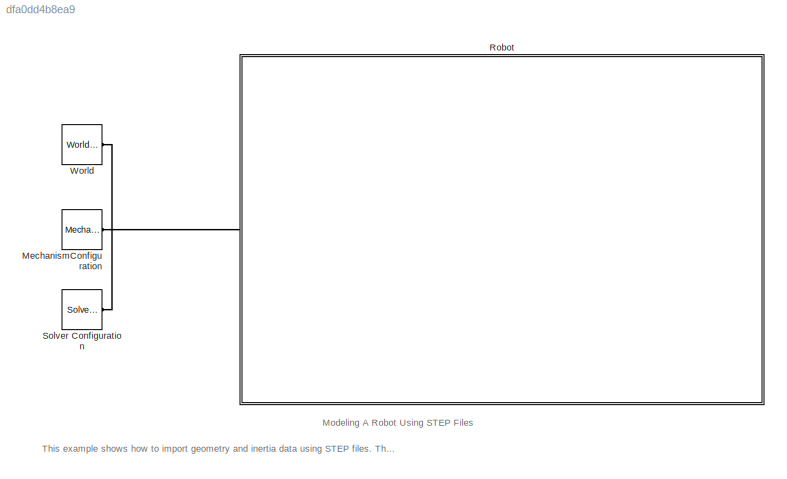
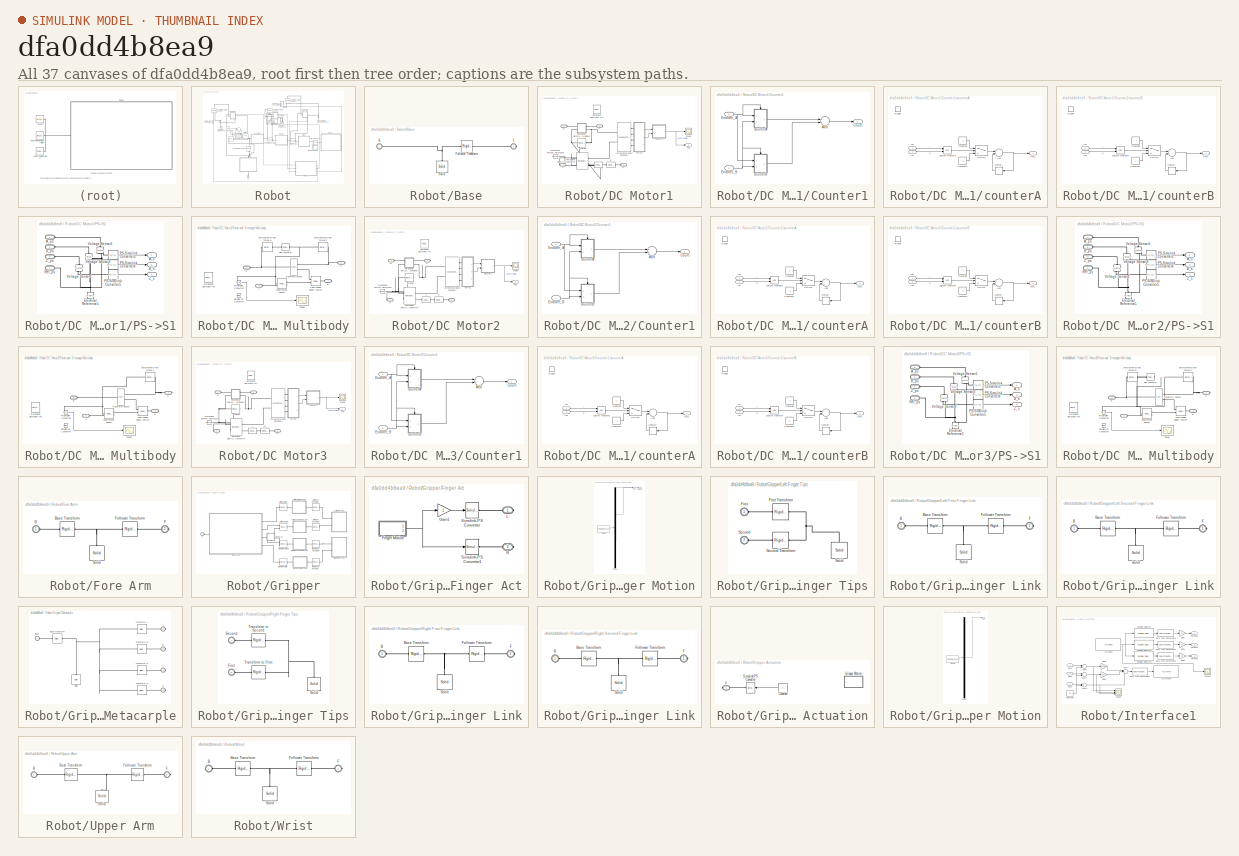
[diagram: thumbnail index - all 37 canvases of the model, root first then tree order]
MODEL slx_dfa0dd4b8ea9
KIND model
CONFIG AbsTol = auto
CONFIG EnableMultiTasking = on
CONFIG FixedStep = auto
CONFIG MaxStep = auto
CONFIG MinStep = auto
CONFIG RelTol = 1e-3
CONFIG SampleTimeConstraint = Unconstrained
CONFIG Solver = FixedStepAuto
CONFIG SolverName = FixedStepAuto
CONFIG StartTime = 0.0
CONFIG StopTime = 50
BLOCK [Reference] MechanismConfiguration  REF=sm_lib/Utilities/Mechanism
Configuration
  Ports = [0, 0, 0, 0, 0, 0, 1]
  SourceBlock = sm_lib/Utilities/Mechanism\nConfiguration
  SourceProductBaseCode = MS
  SourceProductName = Simscape Multibody
  SourceType = Mechanism\nConfiguration
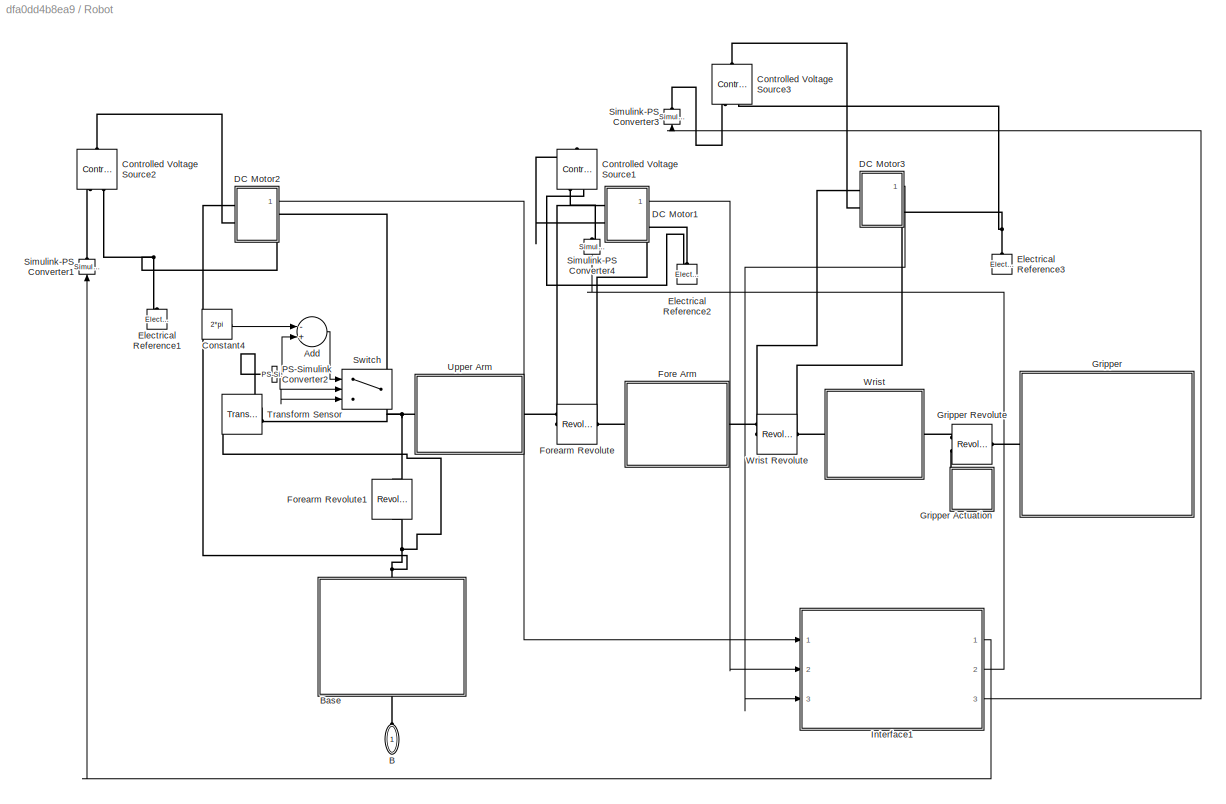
BLOCK [SubSystem] Robot
  Ports = [0, 0, 0, 0, 0, 1]
  RequestExecContextInheritance = off
BLOCK [Sum] Robot/Add
  Commented = on
  InputSameDT = off
  Inputs = -+
  OutDataTypeStr = Inherit: Inherit via internal rule
  Ports = [2, 1]
  SaturateOnIntegerOverflow = off
BLOCK [PMIOPort] Robot/B
  Side = Left
BLOCK [SubSystem] Robot/Base
  Ports = [0, 0, 0, 0, 0, 1, 1]
  RequestExecContextInheritance = off
BLOCK [PMIOPort] Robot/Base/B
  Side = Left
BLOCK [PMIOPort] Robot/Base/F
  Port = 2
  Side = Right
BLOCK [Reference] Robot/Base/Follower Transform  REF=sm_lib/Frames and
Transforms/Rigid
Transform
  Ports = [0, 0, 0, 0, 0, 1, 1]
  SourceBlock = sm_lib/Frames and\nTransforms/Rigid\nTransform
  SourceProductBaseCode = MS
  SourceProductName = Simscape Multibody
  SourceType = Rigid\nTransform
BLOCK [Reference] Robot/Base/Solid  REF=sm_lib/Body Elements/Solid
  Ports = [0, 0, 0, 0, 0, 0, 1]
  SourceBlock = sm_lib/Body Elements/Solid
  SourceProductBaseCode = MS
  SourceProductName = Simscape Multibody
  SourceType = Solid
BLOCK [Constant] Robot/Constant4
  Commented = on
  Value = 2*pi
BLOCK [Reference] Robot/Controlled Voltage Source1  REF=fl_lib/Electrical/Electrical Sources/Controlled Voltage
Source
  Ports = [0, 0, 0, 0, 0, 1, 2]
  SourceBlock = fl_lib/Electrical/Electrical Sources/Controlled Voltage\nSource
  SourceProductBaseCode = SS
  SourceProductName = Simscape
  SourceType = Controlled Voltage\nSource
BLOCK [Reference] Robot/Controlled Voltage Source2  REF=fl_lib/Electrical/Electrical Sources/Controlled Voltage
Source
  Ports = [0, 0, 0, 0, 0, 1, 2]
  SourceBlock = fl_lib/Electrical/Electrical Sources/Controlled Voltage\nSource
  SourceProductBaseCode = SS
  SourceProductName = Simscape
  SourceType = Controlled Voltage\nSource
BLOCK [Reference] Robot/Controlled Voltage Source3  REF=fl_lib/Electrical/Electrical Sources/Controlled Voltage
Source
  Ports = [0, 0, 0, 0, 0, 1, 2]
  SourceBlock = fl_lib/Electrical/Electrical Sources/Controlled Voltage\nSource
  SourceProductBaseCode = SS
  SourceProductName = Simscape
  SourceType = Controlled Voltage\nSource
BLOCK [SubSystem] Robot/DC Motor1
  AncestorBlock = Custom_Motor_Lib/Electrical/DC Motor
  Ports = [0, 1, 0, 0, 0, 2, 2]
  RequestExecContextInheritance = off
  Tag = PublishSubsystem
BLOCK [PMIOPort] Robot/DC Motor1/B
  Side = Left
BLOCK [SubSystem] Robot/DC Motor1/Counter1
  Ports = [2, 1]
  RequestExecContextInheritance = off
BLOCK [Sum] Robot/DC Motor1/Counter1/Add
  InputSameDT = off
  OutDataTypeStr = Inherit: Inherit via internal rule
  Ports = [2, 1]
  SaturateOnIntegerOverflow = off
BLOCK [Outport] Robot/DC Motor1/Counter1/Count
  IconDisplay = Port number
BLOCK [Inport] Robot/DC Motor1/Counter1/Encoder_A
  IconDisplay = Port number
BLOCK [Inport] Robot/DC Motor1/Counter1/Encoder_B
  IconDisplay = Port number
  Port = 2
BLOCK [SubSystem] Robot/DC Motor1/Counter1/counterA
  Ports = [2, 1, 0, 1]
  RequestExecContextInheritance = off
BLOCK [Sum] Robot/DC Motor1/Counter1/counterA/Add
  InputSameDT = off
  OutDataTypeStr = Inherit: Inherit via internal rule
  Ports = [2, 1]
  SaturateOnIntegerOverflow = off
BLOCK [Constant] Robot/DC Motor1/Counter1/counterA/Constant
  SampleTime = -1
BLOCK [Constant] Robot/DC Motor1/Counter1/counterA/Constant1
  SampleTime = -1
  Value = -1
BLOCK [Inport] Robot/DC Motor1/Counter1/counterA/In1
  IconDisplay = Port number
BLOCK [Inport] Robot/DC Motor1/Counter1/counterA/In2
  IconDisplay = Port number
  Port = 2
BLOCK [Logic] Robot/DC Motor1/Counter1/counterA/Logical Operator
  AllPortsSameDT = off
  Operator = XOR
  OutDataTypeStr = boolean
  Ports = [2, 1]
BLOCK [Memory] Robot/DC Motor1/Counter1/counterA/Memory
  InheritSampleTime = on
BLOCK [Outport] Robot/DC Motor1/Counter1/counterA/Out1
  IconDisplay = Port number
BLOCK [Switch] Robot/DC Motor1/Counter1/counterA/Switch
  Criteria = u2 > Threshold
  InputSameDT = off
  SaturateOnIntegerOverflow = off
BLOCK [TriggerPort] Robot/DC Motor1/Counter1/counterA/Trigger
  PortDimensions = 1
  Ports = []
  StatesWhenEnabling = held
  TriggerType = either
  VariantControl = Variant
BLOCK [SubSystem] Robot/DC Motor1/Counter1/counterB
  Ports = [2, 1, 0, 1]
  RequestExecContextInheritance = off
BLOCK [Sum] Robot/DC Motor1/Counter1/counterB/Add
  InputSameDT = off
  OutDataTypeStr = Inherit: Inherit via internal rule
  Ports = [2, 1]
  SaturateOnIntegerOverflow = off
BLOCK [Constant] Robot/DC Motor1/Counter1/counterB/Constant
  SampleTime = -1
  Value = -1
BLOCK [Constant] Robot/DC Motor1/Counter1/counterB/Constant1
  SampleTime = -1
BLOCK [Inport] Robot/DC Motor1/Counter1/counterB/In1
  IconDisplay = Port number
BLOCK [Inport] Robot/DC Motor1/Counter1/counterB/In2
  IconDisplay = Port number
  Port = 2
BLOCK [Logic] Robot/DC Motor1/Counter1/counterB/Logical Operator
  AllPortsSameDT = off
  Operator = XOR
  OutDataTypeStr = boolean
  Ports = [2, 1]
BLOCK [Memory] Robot/DC Motor1/Counter1/counterB/Memory
  InheritSampleTime = on
BLOCK [Outport] Robot/DC Motor1/Counter1/counterB/Out1
  IconDisplay = Port number
BLOCK [Switch] Robot/DC Motor1/Counter1/counterB/Switch
  Criteria = u2 > Threshold
  InputSameDT = off
  SaturateOnIntegerOverflow = off
BLOCK [TriggerPort] Robot/DC Motor1/Counter1/counterB/Trigger
  PortDimensions = 1
  Ports = []
  StatesWhenEnabling = held
  TriggerType = either
  VariantControl = Variant
BLOCK [PMIOPort] Robot/DC Motor1/F
  Port = 3
  Side = Right
BLOCK [Reference] Robot/DC Motor1/Friction  REF=fl_lib/Mechanical/Rotational Elements/Rotational Friction
  Ports = [0, 0, 0, 0, 0, 1, 1]
  SourceBlock = fl_lib/Mechanical/Rotational Elements/Rotational Friction
  SourceProductBaseCode = SS
  SourceProductName = Simscape
  SourceType = Rotational Friction
BLOCK [Reference] Robot/DC Motor1/Incremental Shaft Encoder1  REF=elec_lib/Sensors/Incremental Shaft
Encoder
  Ports = [0, 0, 0, 0, 0, 2, 4]
  SourceBlock = elec_lib/Sensors/Incremental Shaft\nEncoder
  SourceProductBaseCode = SN
  SourceProductName = Simscape Electronics
  SourceType = Incremental Shaft\nEncoder
BLOCK [Reference] Robot/DC Motor1/L  REF=fl_lib/Electrical/Electrical Elements/Inductor
  Ports = [0, 0, 0, 0, 0, 1, 1]
  SourceBlock = fl_lib/Electrical/Electrical Elements/Inductor
  SourceProductBaseCode = SS
  SourceProductName = Simscape
  SourceType = Inductor
BLOCK [Reference] Robot/DC Motor1/Mechanical Rotational Reference  REF=fl_lib/Mechanical/Rotational Elements/Mechanical
Rotational Reference
  Ports = [0, 0, 0, 0, 0, 1]
  SourceBlock = fl_lib/Mechanical/Rotational Elements/Mechanical\nRotational Reference
  SourceProductBaseCode = SS
  SourceProductName = Simscape
  SourceType = Mechanical\nRotational Reference
BLOCK [SubSystem] Robot/DC Motor1/PS->S1
  Ports = [0, 3, 0, 0, 0, 4]
  RequestExecContextInheritance = off
BLOCK [PMIOPort] Robot/DC Motor1/PS->S1/A_ps
  Side = Left
BLOCK [Outport] Robot/DC Motor1/PS->S1/A_s
  IconDisplay = Port number
BLOCK [PMIOPort] Robot/DC Motor1/PS->S1/B_ps
  Port = 2
  Side = Left
BLOCK [Outport] Robot/DC Motor1/PS->S1/B_s
  IconDisplay = Port number
  Port = 2
BLOCK [Reference] Robot/DC Motor1/PS->S1/Electrical Reference1  REF=fl_lib/Electrical/Electrical Elements/Electrical Reference
  Ports = [0, 0, 0, 0, 0, 1]
  SourceBlock = fl_lib/Electrical/Electrical Elements/Electrical Reference
  SourceProductBaseCode = SS
  SourceProductName = Simscape
  SourceType = Electrical Reference
BLOCK [Reference] Robot/DC Motor1/PS->S1/PS-Simulink Converter3  REF=nesl_utility/PS-Simulink
Converter
  Ports = [0, 1, 0, 0, 0, 1]
  SourceBlock = nesl_utility/PS-Simulink\nConverter
  SourceProductBaseCode = SS
  SourceProductName = Simscape
  SourceType = PS-Simulink\nConverter
BLOCK [Reference] Robot/DC Motor1/PS->S1/PS-Simulink Converter4  REF=nesl_utility/PS-Simulink
Converter
  Ports = [0, 1, 0, 0, 0, 1]
  SourceBlock = nesl_utility/PS-Simulink\nConverter
  SourceProductBaseCode = SS
  SourceProductName = Simscape
  SourceType = PS-Simulink\nConverter
BLOCK [Reference] Robot/DC Motor1/PS->S1/PS-Simulink Converter5  REF=nesl_utility/PS-Simulink
Converter
  Ports = [0, 1, 0, 0, 0, 1]
  SourceBlock = nesl_utility/PS-Simulink\nConverter
  SourceProductBaseCode = SS
  SourceProductName = Simscape
  SourceType = PS-Simulink\nConverter
BLOCK [PMIOPort] Robot/DC Motor1/PS->S1/Ref_ps
  Port = 4
  Side = Left
BLOCK [Reference] Robot/DC Motor1/PS->S1/Voltage Sensor1  REF=fl_lib/Electrical/Electrical Sensors/Voltage Sensor
  Ports = [0, 0, 0, 0, 0, 1, 2]
  SourceBlock = fl_lib/Electrical/Electrical Sensors/Voltage Sensor
  SourceProductBaseCode = SS
  SourceProductName = Simscape
  SourceType = Voltage Sensor
BLOCK [Reference] Robot/DC Motor1/PS->S1/Voltage Sensor3  REF=fl_lib/Electrical/Electrical Sensors/Voltage Sensor
  Ports = [0, 0, 0, 0, 0, 1, 2]
  SourceBlock = fl_lib/Electrical/Electrical Sensors/Voltage Sensor
  SourceProductBaseCode = SS
  SourceProductName = Simscape
  SourceType = Voltage Sensor
BLOCK [Reference] Robot/DC Motor1/PS->S1/Voltage Sensor4  REF=fl_lib/Electrical/Electrical Sensors/Voltage Sensor
  Ports = [0, 0, 0, 0, 0, 1, 2]
  SourceBlock = fl_lib/Electrical/Electrical Sensors/Voltage Sensor
  SourceProductBaseCode = SS
  SourceProductName = Simscape
  SourceType = Voltage Sensor
BLOCK [PMIOPort] Robot/DC Motor1/PS->S1/Z_ps
  Port = 3
  Side = Left
BLOCK [Outport] Robot/DC Motor1/PS->S1/Z_s
  IconDisplay = Port number
  Port = 3
BLOCK [Outport] Robot/DC Motor1/Pos
  IconDisplay = Port number
BLOCK [Reference] Robot/DC Motor1/R  REF=fl_lib/Electrical/Electrical Elements/Resistor
  Ports = [0, 0, 0, 0, 0, 1, 1]
  SourceBlock = fl_lib/Electrical/Electrical Elements/Resistor
  SourceProductBaseCode = SS
  SourceProductName = Simscape
  SourceType = Resistor
  Tag = Factory Generic
BLOCK [Reference] Robot/DC Motor1/Rotational Electromechanical Converter  REF=fl_lib/Electrical/Electrical Elements/Rotational
Electromechanical
Converter
  Ports = [0, 0, 0, 0, 0, 2, 2]
  SourceBlock = fl_lib/Electrical/Electrical Elements/Rotational\nElectromechanical\nConverter
  SourceProductBaseCode = SS
  SourceProductName = Simscape
  SourceType = Rotational\nElectromechanical\nConverter
BLOCK [Reference] Robot/DC Motor1/Rotational Simscape Intf  REF=Multibody_Multiphysics_Lib/Interfaces/Rotational
Simscape Intf
  Commented = on
  Ports = [0, 0, 0, 0, 0, 2, 2]
  SourceBlock = Multibody_Multiphysics_Lib/Interfaces/Rotational\nSimscape Intf
  SourceProductName = Simscape Multibody Multiphysics Library
  SourceType = SubSystem
BLOCK [SubSystem] Robot/DC Motor1/Rotational Simscape Multibody
  AncestorBlock = Multibody_Multiphysics_Lib/Interfaces/Rotational\nSimscape Multibody
  Ports = [0, 0, 0, 0, 0, 2, 2]
  RequestExecContextInheritance = off
BLOCK [PMIOPort] Robot/DC Motor1/Rotational Simscape Multibody/B
  Port = 2
  Side = Left
BLOCK [PMIOPort] Robot/DC Motor1/Rotational Simscape Multibody/C
  Port = 4
  Side = Left
BLOCK [Reference] Robot/DC Motor1/Rotational Simscape Multibody/External Force and Torque B  REF=sm_lib/Forces and
Torques/External Force
and Torque
  Ports = [0, 0, 0, 0, 0, 1, 1]
  SourceBlock = sm_lib/Forces and\nTorques/External Force\nand Torque
  SourceProductBaseCode = MS
  SourceProductName = Simscape Multibody
  SourceType = External Force\nand Torque
BLOCK [Reference] Robot/DC Motor1/Rotational Simscape Multibody/External Force and Torque F  REF=sm_lib/Forces and
Torques/External Force
and Torque
  Ports = [0, 0, 0, 0, 0, 1, 1]
  SourceBlock = sm_lib/Forces and\nTorques/External Force\nand Torque
  SourceProductBaseCode = MS
  SourceProductName = Simscape Multibody
  SourceType = External Force\nand Torque
BLOCK [PMIOPort] Robot/DC Motor1/Rotational Simscape Multibody/F
  Side = Right
BLOCK [Reference] Robot/DC Motor1/Rotational Simscape Multibody/Ideal Angular Velocity Source  REF=fl_lib/Mechanical/Mechanical Sources/Ideal Angular
Velocity Source
  Ports = [0, 0, 0, 0, 0, 1, 2]
  SourceBlock = fl_lib/Mechanical/Mechanical Sources/Ideal Angular\nVelocity Source
  SourceProductBaseCode = SS
  SourceProductName = Simscape
  SourceType = Ideal Angular\nVelocity Source
BLOCK [Reference] Robot/DC Motor1/Rotational Simscape Multibody/Ideal Torque Sensor  REF=fl_lib/Mechanical/Mechanical Sensors/Ideal Torque Sensor
  Ports = [0, 0, 0, 0, 0, 1, 2]
  SourceBlock = fl_lib/Mechanical/Mechanical Sensors/Ideal Torque Sensor
  SourceProductBaseCode = SS
  SourceProductName = Simscape
  SourceType = Ideal Torque Sensor
BLOCK [Reference] Robot/DC Motor1/Rotational Simscape Multibody/PS-Simulink Converter  REF=nesl_utility/PS-Simulink
Converter
  Ports = [0, 1, 0, 0, 0, 1]
  SourceBlock = nesl_utility/PS-Simulink\nConverter
  SourceProductBaseCode = SS
  SourceProductName = Simscape
  SourceType = PS-Simulink\nConverter
BLOCK [PMIOPort] Robot/DC Motor1/Rotational Simscape Multibody/R
  Port = 3
  Side = Right
BLOCK [Reference] Robot/DC Motor1/Rotational Simscape Multibody/Rotational Simscape Intf  REF=Multibody_Multiphysics_Lib/Interfaces/Rotational
Simscape Intf
  Commented = on
  Ports = [0, 0, 0, 0, 0, 2, 2]
  SourceBlock = Multibody_Multiphysics_Lib/Interfaces/Rotational\nSimscape Intf
  SourceProductName = Simscape Multibody Multiphysics Library
  SourceType = SubSystem
BLOCK [Scope] Robot/DC Motor1/Rotational Simscape Multibody/Scope
  Floating = off
  NumInputPorts = 1
  Ports = [1]
  ScopeSpecificationString = Simulink.scopes.TimeScopeBlockCfg('CurrentConfiguration', extmgr.ConfigurationSet(extmgr.Configuration('Core','General UI',true),extmgr.Configuration('Core','Source UI',true),extmgr.Configuration('Sources','WiredSimulink',true,'DataLoggingVariableName','ScopeData3'),extmgr.Configuration('Visuals','Time Domain',true,'SerializedDisplays',{struct('MinYLimReal','-3.02287','MaxYLimReal','27.18118','YLa...<+1413ch>
BLOCK [Reference] Robot/DC Motor1/Rotational Simscape Multibody/Sign Torque B  REF=fl_lib/Physical Signals/Functions/PS Gain
  Ports = [0, 0, 0, 0, 0, 1, 1]
  SourceBlock = fl_lib/Physical Signals/Functions/PS Gain
  SourceProductBaseCode = SS
  SourceProductName = Simscape
  SourceType = PS Gain
BLOCK [Reference] Robot/DC Motor1/Rotational Simscape Multibody/Simulink-PS Converter  REF=nesl_utility/Simulink-PS
Converter
  Commented = on
  Ports = [1, 0, 0, 0, 0, 0, 1]
  SourceBlock = nesl_utility/Simulink-PS\nConverter
  SourceProductBaseCode = SS
  SourceProductName = Simscape
  SourceType = Simulink-PS\nConverter
BLOCK [Reference] Robot/DC Motor1/Rotational Simscape Multibody/Transform Sensor  REF=sm_lib/Frames and
Transforms/Transform
Sensor
  Ports = [0, 0, 0, 0, 0, 1, 2]
  SourceBlock = sm_lib/Frames and\nTransforms/Transform\nSensor
  SourceProductBaseCode = MS
  SourceProductName = Simscape Multibody
  SourceType = Transform\nSensor
BLOCK [Scope] Robot/DC Motor1/Scope
  Floating = off
  NumInputPorts = 1
  Ports = [1]
  ScopeSpecificationString = Simulink.scopes.TimeScopeBlockCfg('CurrentConfiguration', extmgr.ConfigurationSet(extmgr.Configuration('Core','General UI',true),extmgr.Configuration('Core','Source UI',true),extmgr.Configuration('Sources','WiredSimulink',true,'DataLoggingVariableName','ScopeData1'),extmgr.Configuration('Visuals','Time Domain',true,'SerializedDisplays',{struct('MinYLimReal','-0.6228','MaxYLimReal','5.60517','YLabe...<+1402ch>
BLOCK [PMIOPort] Robot/DC Motor1/V+
  Port = 2
  Side = Left
BLOCK [PMIOPort] Robot/DC Motor1/V-
  Port = 4
  Side = Right
BLOCK [SubSystem] Robot/DC Motor2
  AncestorBlock = Custom_Motor_Lib/Electrical/DC Motor
  Ports = [0, 1, 0, 0, 0, 2, 2]
  RequestExecContextInheritance = off
  Tag = PublishSubsystem
BLOCK [PMIOPort] Robot/DC Motor2/B
  Side = Left
BLOCK [SubSystem] Robot/DC Motor2/Counter1
  Ports = [2, 1]
  RequestExecContextInheritance = off
BLOCK [Sum] Robot/DC Motor2/Counter1/Add
  InputSameDT = off
  OutDataTypeStr = Inherit: Inherit via internal rule
  Ports = [2, 1]
  SaturateOnIntegerOverflow = off
BLOCK [Outport] Robot/DC Motor2/Counter1/Count
  IconDisplay = Port number
BLOCK [Inport] Robot/DC Motor2/Counter1/Encoder_A
  IconDisplay = Port number
BLOCK [Inport] Robot/DC Motor2/Counter1/Encoder_B
  IconDisplay = Port number
  Port = 2
BLOCK [SubSystem] Robot/DC Motor2/Counter1/counterA
  Ports = [2, 1, 0, 1]
  RequestExecContextInheritance = off
BLOCK [Sum] Robot/DC Motor2/Counter1/counterA/Add
  InputSameDT = off
  OutDataTypeStr = Inherit: Inherit via internal rule
  Ports = [2, 1]
  SaturateOnIntegerOverflow = off
BLOCK [Constant] Robot/DC Motor2/Counter1/counterA/Constant
  SampleTime = -1
BLOCK [Constant] Robot/DC Motor2/Counter1/counterA/Constant1
  SampleTime = -1
  Value = -1
BLOCK [Inport] Robot/DC Motor2/Counter1/counterA/In1
  IconDisplay = Port number
BLOCK [Inport] Robot/DC Motor2/Counter1/counterA/In2
  IconDisplay = Port number
  Port = 2
BLOCK [Logic] Robot/DC Motor2/Counter1/counterA/Logical Operator
  AllPortsSameDT = off
  Operator = XOR
  OutDataTypeStr = boolean
  Ports = [2, 1]
BLOCK [Memory] Robot/DC Motor2/Counter1/counterA/Memory
  InheritSampleTime = on
BLOCK [Outport] Robot/DC Motor2/Counter1/counterA/Out1
  IconDisplay = Port number
BLOCK [Switch] Robot/DC Motor2/Counter1/counterA/Switch
  Criteria = u2 > Threshold
  InputSameDT = off
  SaturateOnIntegerOverflow = off
BLOCK [TriggerPort] Robot/DC Motor2/Counter1/counterA/Trigger
  PortDimensions = 1
  Ports = []
  StatesWhenEnabling = held
  TriggerType = either
  VariantControl = Variant
BLOCK [SubSystem] Robot/DC Motor2/Counter1/counterB
  Ports = [2, 1, 0, 1]
  RequestExecContextInheritance = off
BLOCK [Sum] Robot/DC Motor2/Counter1/counterB/Add
  InputSameDT = off
  OutDataTypeStr = Inherit: Inherit via internal rule
  Ports = [2, 1]
  SaturateOnIntegerOverflow = off
BLOCK [Constant] Robot/DC Motor2/Counter1/counterB/Constant
  SampleTime = -1
  Value = -1
BLOCK [Constant] Robot/DC Motor2/Counter1/counterB/Constant1
  SampleTime = -1
BLOCK [Inport] Robot/DC Motor2/Counter1/counterB/In1
  IconDisplay = Port number
BLOCK [Inport] Robot/DC Motor2/Counter1/counterB/In2
  IconDisplay = Port number
  Port = 2
BLOCK [Logic] Robot/DC Motor2/Counter1/counterB/Logical Operator
  AllPortsSameDT = off
  Operator = XOR
  OutDataTypeStr = boolean
  Ports = [2, 1]
BLOCK [Memory] Robot/DC Motor2/Counter1/counterB/Memory
  InheritSampleTime = on
BLOCK [Outport] Robot/DC Motor2/Counter1/counterB/Out1
  IconDisplay = Port number
BLOCK [Switch] Robot/DC Motor2/Counter1/counterB/Switch
  Criteria = u2 > Threshold
  InputSameDT = off
  SaturateOnIntegerOverflow = off
BLOCK [TriggerPort] Robot/DC Motor2/Counter1/counterB/Trigger
  PortDimensions = 1
  Ports = []
  StatesWhenEnabling = held
  TriggerType = either
  VariantControl = Variant
BLOCK [PMIOPort] Robot/DC Motor2/F
  Port = 3
  Side = Right
BLOCK [Reference] Robot/DC Motor2/Friction  REF=fl_lib/Mechanical/Rotational Elements/Rotational Friction
  Ports = [0, 0, 0, 0, 0, 1, 1]
  SourceBlock = fl_lib/Mechanical/Rotational Elements/Rotational Friction
  SourceProductBaseCode = SS
  SourceProductName = Simscape
  SourceType = Rotational Friction
BLOCK [Reference] Robot/DC Motor2/Incremental Shaft Encoder1  REF=elec_lib/Sensors/Incremental Shaft
Encoder
  Ports = [0, 0, 0, 0, 0, 2, 4]
  SourceBlock = elec_lib/Sensors/Incremental Shaft\nEncoder
  SourceProductBaseCode = SN
  SourceProductName = Simscape Electronics
  SourceType = Incremental Shaft\nEncoder
BLOCK [Reference] Robot/DC Motor2/L  REF=fl_lib/Electrical/Electrical Elements/Inductor
  Ports = [0, 0, 0, 0, 0, 1, 1]
  SourceBlock = fl_lib/Electrical/Electrical Elements/Inductor
  SourceProductBaseCode = SS
  SourceProductName = Simscape
  SourceType = Inductor
BLOCK [Reference] Robot/DC Motor2/Mechanical Rotational Reference  REF=fl_lib/Mechanical/Rotational Elements/Mechanical
Rotational Reference
  Ports = [0, 0, 0, 0, 0, 1]
  SourceBlock = fl_lib/Mechanical/Rotational Elements/Mechanical\nRotational Reference
  SourceProductBaseCode = SS
  SourceProductName = Simscape
  SourceType = Mechanical\nRotational Reference
BLOCK [SubSystem] Robot/DC Motor2/PS->S1
  Ports = [0, 3, 0, 0, 0, 4]
  RequestExecContextInheritance = off
BLOCK [PMIOPort] Robot/DC Motor2/PS->S1/A_ps
  Side = Left
BLOCK [Outport] Robot/DC Motor2/PS->S1/A_s
  IconDisplay = Port number
BLOCK [PMIOPort] Robot/DC Motor2/PS->S1/B_ps
  Port = 2
  Side = Left
BLOCK [Outport] Robot/DC Motor2/PS->S1/B_s
  IconDisplay = Port number
  Port = 2
BLOCK [Reference] Robot/DC Motor2/PS->S1/Electrical Reference1  REF=fl_lib/Electrical/Electrical Elements/Electrical Reference
  Ports = [0, 0, 0, 0, 0, 1]
  SourceBlock = fl_lib/Electrical/Electrical Elements/Electrical Reference
  SourceProductBaseCode = SS
  SourceProductName = Simscape
  SourceType = Electrical Reference
BLOCK [Reference] Robot/DC Motor2/PS->S1/PS-Simulink Converter3  REF=nesl_utility/PS-Simulink
Converter
  Ports = [0, 1, 0, 0, 0, 1]
  SourceBlock = nesl_utility/PS-Simulink\nConverter
  SourceProductBaseCode = SS
  SourceProductName = Simscape
  SourceType = PS-Simulink\nConverter
BLOCK [Reference] Robot/DC Motor2/PS->S1/PS-Simulink Converter4  REF=nesl_utility/PS-Simulink
Converter
  Ports = [0, 1, 0, 0, 0, 1]
  SourceBlock = nesl_utility/PS-Simulink\nConverter
  SourceProductBaseCode = SS
  SourceProductName = Simscape
  SourceType = PS-Simulink\nConverter
BLOCK [Reference] Robot/DC Motor2/PS->S1/PS-Simulink Converter5  REF=nesl_utility/PS-Simulink
Converter
  Ports = [0, 1, 0, 0, 0, 1]
  SourceBlock = nesl_utility/PS-Simulink\nConverter
  SourceProductBaseCode = SS
  SourceProductName = Simscape
  SourceType = PS-Simulink\nConverter
BLOCK [PMIOPort] Robot/DC Motor2/PS->S1/Ref_ps
  Port = 4
  Side = Left
BLOCK [Reference] Robot/DC Motor2/PS->S1/Voltage Sensor1  REF=fl_lib/Electrical/Electrical Sensors/Voltage Sensor
  Ports = [0, 0, 0, 0, 0, 1, 2]
  SourceBlock = fl_lib/Electrical/Electrical Sensors/Voltage Sensor
  SourceProductBaseCode = SS
  SourceProductName = Simscape
  SourceType = Voltage Sensor
BLOCK [Reference] Robot/DC Motor2/PS->S1/Voltage Sensor3  REF=fl_lib/Electrical/Electrical Sensors/Voltage Sensor
  Ports = [0, 0, 0, 0, 0, 1, 2]
  SourceBlock = fl_lib/Electrical/Electrical Sensors/Voltage Sensor
  SourceProductBaseCode = SS
  SourceProductName = Simscape
  SourceType = Voltage Sensor
BLOCK [Reference] Robot/DC Motor2/PS->S1/Voltage Sensor4  REF=fl_lib/Electrical/Electrical Sensors/Voltage Sensor
  Ports = [0, 0, 0, 0, 0, 1, 2]
  SourceBlock = fl_lib/Electrical/Electrical Sensors/Voltage Sensor
  SourceProductBaseCode = SS
  SourceProductName = Simscape
  SourceType = Voltage Sensor
BLOCK [PMIOPort] Robot/DC Motor2/PS->S1/Z_ps
  Port = 3
  Side = Left
BLOCK [Outport] Robot/DC Motor2/PS->S1/Z_s
  IconDisplay = Port number
  Port = 3
BLOCK [Outport] Robot/DC Motor2/Pos
  IconDisplay = Port number
BLOCK [Reference] Robot/DC Motor2/R  REF=fl_lib/Electrical/Electrical Elements/Resistor
  Ports = [0, 0, 0, 0, 0, 1, 1]
  SourceBlock = fl_lib/Electrical/Electrical Elements/Resistor
  SourceProductBaseCode = SS
  SourceProductName = Simscape
  SourceType = Resistor
  Tag = Factory Generic
BLOCK [Reference] Robot/DC Motor2/Rotational Electromechanical Converter  REF=fl_lib/Electrical/Electrical Elements/Rotational
Electromechanical
Converter
  Ports = [0, 0, 0, 0, 0, 2, 2]
  SourceBlock = fl_lib/Electrical/Electrical Elements/Rotational\nElectromechanical\nConverter
  SourceProductBaseCode = SS
  SourceProductName = Simscape
  SourceType = Rotational\nElectromechanical\nConverter
BLOCK [Reference] Robot/DC Motor2/Rotational Simscape Intf  REF=Multibody_Multiphysics_Lib/Interfaces/Rotational
Simscape Intf
  Commented = on
  Ports = [0, 0, 0, 0, 0, 2, 2]
  SourceBlock = Multibody_Multiphysics_Lib/Interfaces/Rotational\nSimscape Intf
  SourceProductName = Simscape Multibody Multiphysics Library
  SourceType = SubSystem
BLOCK [SubSystem] Robot/DC Motor2/Rotational Simscape Multibody
  AncestorBlock = Multibody_Multiphysics_Lib/Interfaces/Rotational\nSimscape Multibody
  Ports = [0, 0, 0, 0, 0, 2, 2]
  RequestExecContextInheritance = off
BLOCK [PMIOPort] Robot/DC Motor2/Rotational Simscape Multibody/B
  Port = 2
  Side = Left
BLOCK [PMIOPort] Robot/DC Motor2/Rotational Simscape Multibody/C
  Port = 4
  Side = Left
BLOCK [Reference] Robot/DC Motor2/Rotational Simscape Multibody/External Force and Torque F  REF=sm_lib/Forces and
Torques/External Force
and Torque
  Ports = [0, 0, 0, 0, 0, 1, 1]
  SourceBlock = sm_lib/Forces and\nTorques/External Force\nand Torque
  SourceProductBaseCode = MS
  SourceProductName = Simscape Multibody
  SourceType = External Force\nand Torque
BLOCK [PMIOPort] Robot/DC Motor2/Rotational Simscape Multibody/F
  Side = Right
BLOCK [Reference] Robot/DC Motor2/Rotational Simscape Multibody/Ideal Angular Velocity Source  REF=fl_lib/Mechanical/Mechanical Sources/Ideal Angular
Velocity Source
  Ports = [0, 0, 0, 0, 0, 1, 2]
  SourceBlock = fl_lib/Mechanical/Mechanical Sources/Ideal Angular\nVelocity Source
  SourceProductBaseCode = SS
  SourceProductName = Simscape
  SourceType = Ideal Angular\nVelocity Source
BLOCK [Reference] Robot/DC Motor2/Rotational Simscape Multibody/Ideal Torque Sensor  REF=fl_lib/Mechanical/Mechanical Sensors/Ideal Torque Sensor
  Ports = [0, 0, 0, 0, 0, 1, 2]
  SourceBlock = fl_lib/Mechanical/Mechanical Sensors/Ideal Torque Sensor
  SourceProductBaseCode = SS
  SourceProductName = Simscape
  SourceType = Ideal Torque Sensor
BLOCK [Reference] Robot/DC Motor2/Rotational Simscape Multibody/PS-Simulink Converter  REF=nesl_utility/PS-Simulink
Converter
  Ports = [0, 1, 0, 0, 0, 1]
  SourceBlock = nesl_utility/PS-Simulink\nConverter
  SourceProductBaseCode = SS
  SourceProductName = Simscape
  SourceType = PS-Simulink\nConverter
BLOCK [PMIOPort] Robot/DC Motor2/Rotational Simscape Multibody/R
  Port = 3
  Side = Right
BLOCK [Reference] Robot/DC Motor2/Rotational Simscape Multibody/Rotational Simscape Intf  REF=Multibody_Multiphysics_Lib/Interfaces/Rotational
Simscape Intf
  Commented = on
  Ports = [0, 0, 0, 0, 0, 2, 2]
  SourceBlock = Multibody_Multiphysics_Lib/Interfaces/Rotational\nSimscape Intf
  SourceProductName = Simscape Multibody Multiphysics Library
  SourceType = SubSystem
BLOCK [Scope] Robot/DC Motor2/Rotational Simscape Multibody/Scope
  Floating = off
  NumInputPorts = 1
  Ports = [1]
  ScopeSpecificationString = Simulink.scopes.TimeScopeBlockCfg('CurrentConfiguration', extmgr.ConfigurationSet(extmgr.Configuration('Core','General UI',true),extmgr.Configuration('Core','Source UI',true),extmgr.Configuration('Sources','WiredSimulink',true,'DataLoggingVariableName','ScopeData3'),extmgr.Configuration('Visuals','Time Domain',true,'SerializedDisplays',{struct('MinYLimReal','-3.60119','MaxYLimReal','32.41072','YLa...<+1413ch>
BLOCK [Reference] Robot/DC Motor2/Rotational Simscape Multibody/Simulink-PS Converter  REF=nesl_utility/Simulink-PS
Converter
  Commented = on
  Ports = [1, 0, 0, 0, 0, 0, 1]
  SourceBlock = nesl_utility/Simulink-PS\nConverter
  SourceProductBaseCode = SS
  SourceProductName = Simscape
  SourceType = Simulink-PS\nConverter
BLOCK [Reference] Robot/DC Motor2/Rotational Simscape Multibody/Transform Sensor  REF=sm_lib/Frames and
Transforms/Transform
Sensor
  Ports = [0, 0, 0, 0, 0, 1, 2]
  SourceBlock = sm_lib/Frames and\nTransforms/Transform\nSensor
  SourceProductBaseCode = MS
  SourceProductName = Simscape Multibody
  SourceType = Transform\nSensor
BLOCK [Scope] Robot/DC Motor2/Scope
  Floating = off
  NumInputPorts = 1
  Ports = [1]
  ScopeSpecificationString = Simulink.scopes.TimeScopeBlockCfg('CurrentConfiguration', extmgr.ConfigurationSet(extmgr.Configuration('Core','General UI',true),extmgr.Configuration('Core','Source UI',true),extmgr.Configuration('Sources','WiredSimulink',true,'DataLoggingVariableName','ScopeData1'),extmgr.Configuration('Visuals','Time Domain',true,'SerializedDisplays',{struct('MinYLimReal','-60.00000','MaxYLimReal','60.00000','YL...<+1436ch>
BLOCK [PMIOPort] Robot/DC Motor2/V+
  Port = 2
  Side = Left
BLOCK [PMIOPort] Robot/DC Motor2/V-
  Port = 4
  Side = Right
BLOCK [SubSystem] Robot/DC Motor3
  AncestorBlock = Custom_Motor_Lib/Electrical/DC Motor
  Ports = [0, 1, 0, 0, 0, 2, 2]
  RequestExecContextInheritance = off
  Tag = PublishSubsystem
BLOCK [PMIOPort] Robot/DC Motor3/B
  Side = Left
BLOCK [SubSystem] Robot/DC Motor3/Counter1
  Ports = [2, 1]
  RequestExecContextInheritance = off
BLOCK [Sum] Robot/DC Motor3/Counter1/Add
  InputSameDT = off
  OutDataTypeStr = Inherit: Inherit via internal rule
  Ports = [2, 1]
  SaturateOnIntegerOverflow = off
BLOCK [Outport] Robot/DC Motor3/Counter1/Count
  IconDisplay = Port number
BLOCK [Inport] Robot/DC Motor3/Counter1/Encoder_A
  IconDisplay = Port number
BLOCK [Inport] Robot/DC Motor3/Counter1/Encoder_B
  IconDisplay = Port number
  Port = 2
BLOCK [SubSystem] Robot/DC Motor3/Counter1/counterA
  Ports = [2, 1, 0, 1]
  RequestExecContextInheritance = off
BLOCK [Sum] Robot/DC Motor3/Counter1/counterA/Add
  InputSameDT = off
  OutDataTypeStr = Inherit: Inherit via internal rule
  Ports = [2, 1]
  SaturateOnIntegerOverflow = off
BLOCK [Constant] Robot/DC Motor3/Counter1/counterA/Constant
  SampleTime = -1
BLOCK [Constant] Robot/DC Motor3/Counter1/counterA/Constant1
  SampleTime = -1
  Value = -1
BLOCK [Inport] Robot/DC Motor3/Counter1/counterA/In1
  IconDisplay = Port number
BLOCK [Inport] Robot/DC Motor3/Counter1/counterA/In2
  IconDisplay = Port number
  Port = 2
BLOCK [Logic] Robot/DC Motor3/Counter1/counterA/Logical Operator
  AllPortsSameDT = off
  Operator = XOR
  OutDataTypeStr = boolean
  Ports = [2, 1]
BLOCK [Memory] Robot/DC Motor3/Counter1/counterA/Memory
  InheritSampleTime = on
BLOCK [Outport] Robot/DC Motor3/Counter1/counterA/Out1
  IconDisplay = Port number
BLOCK [Switch] Robot/DC Motor3/Counter1/counterA/Switch
  Criteria = u2 > Threshold
  InputSameDT = off
  SaturateOnIntegerOverflow = off
BLOCK [TriggerPort] Robot/DC Motor3/Counter1/counterA/Trigger
  PortDimensions = 1
  Ports = []
  StatesWhenEnabling = held
  TriggerType = either
  VariantControl = Variant
BLOCK [SubSystem] Robot/DC Motor3/Counter1/counterB
  Ports = [2, 1, 0, 1]
  RequestExecContextInheritance = off
BLOCK [Sum] Robot/DC Motor3/Counter1/counterB/Add
  InputSameDT = off
  OutDataTypeStr = Inherit: Inherit via internal rule
  Ports = [2, 1]
  SaturateOnIntegerOverflow = off
BLOCK [Constant] Robot/DC Motor3/Counter1/counterB/Constant
  SampleTime = -1
  Value = -1
BLOCK [Constant] Robot/DC Motor3/Counter1/counterB/Constant1
  SampleTime = -1
BLOCK [Inport] Robot/DC Motor3/Counter1/counterB/In1
  IconDisplay = Port number
BLOCK [Inport] Robot/DC Motor3/Counter1/counterB/In2
  IconDisplay = Port number
  Port = 2
BLOCK [Logic] Robot/DC Motor3/Counter1/counterB/Logical Operator
  AllPortsSameDT = off
  Operator = XOR
  OutDataTypeStr = boolean
  Ports = [2, 1]
BLOCK [Memory] Robot/DC Motor3/Counter1/counterB/Memory
  InheritSampleTime = on
BLOCK [Outport] Robot/DC Motor3/Counter1/counterB/Out1
  IconDisplay = Port number
BLOCK [Switch] Robot/DC Motor3/Counter1/counterB/Switch
  Criteria = u2 > Threshold
  InputSameDT = off
  SaturateOnIntegerOverflow = off
BLOCK [TriggerPort] Robot/DC Motor3/Counter1/counterB/Trigger
  PortDimensions = 1
  Ports = []
  StatesWhenEnabling = held
  TriggerType = either
  VariantControl = Variant
BLOCK [PMIOPort] Robot/DC Motor3/F
  Port = 3
  Side = Right
BLOCK [Reference] Robot/DC Motor3/Friction  REF=fl_lib/Mechanical/Rotational Elements/Rotational Friction
  Ports = [0, 0, 0, 0, 0, 1, 1]
  SourceBlock = fl_lib/Mechanical/Rotational Elements/Rotational Friction
  SourceProductBaseCode = SS
  SourceProductName = Simscape
  SourceType = Rotational Friction
BLOCK [Reference] Robot/DC Motor3/Incremental Shaft Encoder1  REF=elec_lib/Sensors/Incremental Shaft
Encoder
  Ports = [0, 0, 0, 0, 0, 2, 4]
  SourceBlock = elec_lib/Sensors/Incremental Shaft\nEncoder
  SourceProductBaseCode = SN
  SourceProductName = Simscape Electronics
  SourceType = Incremental Shaft\nEncoder
BLOCK [Reference] Robot/DC Motor3/L  REF=fl_lib/Electrical/Electrical Elements/Inductor
  Ports = [0, 0, 0, 0, 0, 1, 1]
  SourceBlock = fl_lib/Electrical/Electrical Elements/Inductor
  SourceProductBaseCode = SS
  SourceProductName = Simscape
  SourceType = Inductor
BLOCK [Reference] Robot/DC Motor3/Mechanical Rotational Reference  REF=fl_lib/Mechanical/Rotational Elements/Mechanical
Rotational Reference
  Ports = [0, 0, 0, 0, 0, 1]
  SourceBlock = fl_lib/Mechanical/Rotational Elements/Mechanical\nRotational Reference
  SourceProductBaseCode = SS
  SourceProductName = Simscape
  SourceType = Mechanical\nRotational Reference
BLOCK [SubSystem] Robot/DC Motor3/PS->S1
  Ports = [0, 3, 0, 0, 0, 4]
  RequestExecContextInheritance = off
BLOCK [PMIOPort] Robot/DC Motor3/PS->S1/A_ps
  Side = Left
BLOCK [Outport] Robot/DC Motor3/PS->S1/A_s
  IconDisplay = Port number
BLOCK [PMIOPort] Robot/DC Motor3/PS->S1/B_ps
  Port = 2
  Side = Left
BLOCK [Outport] Robot/DC Motor3/PS->S1/B_s
  IconDisplay = Port number
  Port = 2
BLOCK [Reference] Robot/DC Motor3/PS->S1/Electrical Reference1  REF=fl_lib/Electrical/Electrical Elements/Electrical Reference
  Ports = [0, 0, 0, 0, 0, 1]
  SourceBlock = fl_lib/Electrical/Electrical Elements/Electrical Reference
  SourceProductBaseCode = SS
  SourceProductName = Simscape
  SourceType = Electrical Reference
BLOCK [Reference] Robot/DC Motor3/PS->S1/PS-Simulink Converter3  REF=nesl_utility/PS-Simulink
Converter
  Ports = [0, 1, 0, 0, 0, 1]
  SourceBlock = nesl_utility/PS-Simulink\nConverter
  SourceProductBaseCode = SS
  SourceProductName = Simscape
  SourceType = PS-Simulink\nConverter
BLOCK [Reference] Robot/DC Motor3/PS->S1/PS-Simulink Converter4  REF=nesl_utility/PS-Simulink
Converter
  Ports = [0, 1, 0, 0, 0, 1]
  SourceBlock = nesl_utility/PS-Simulink\nConverter
  SourceProductBaseCode = SS
  SourceProductName = Simscape
  SourceType = PS-Simulink\nConverter
BLOCK [Reference] Robot/DC Motor3/PS->S1/PS-Simulink Converter5  REF=nesl_utility/PS-Simulink
Converter
  Ports = [0, 1, 0, 0, 0, 1]
  SourceBlock = nesl_utility/PS-Simulink\nConverter
  SourceProductBaseCode = SS
  SourceProductName = Simscape
  SourceType = PS-Simulink\nConverter
BLOCK [PMIOPort] Robot/DC Motor3/PS->S1/Ref_ps
  Port = 4
  Side = Left
BLOCK [Reference] Robot/DC Motor3/PS->S1/Voltage Sensor1  REF=fl_lib/Electrical/Electrical Sensors/Voltage Sensor
  Ports = [0, 0, 0, 0, 0, 1, 2]
  SourceBlock = fl_lib/Electrical/Electrical Sensors/Voltage Sensor
  SourceProductBaseCode = SS
  SourceProductName = Simscape
  SourceType = Voltage Sensor
BLOCK [Reference] Robot/DC Motor3/PS->S1/Voltage Sensor3  REF=fl_lib/Electrical/Electrical Sensors/Voltage Sensor
  Ports = [0, 0, 0, 0, 0, 1, 2]
  SourceBlock = fl_lib/Electrical/Electrical Sensors/Voltage Sensor
  SourceProductBaseCode = SS
  SourceProductName = Simscape
  SourceType = Voltage Sensor
BLOCK [Reference] Robot/DC Motor3/PS->S1/Voltage Sensor4  REF=fl_lib/Electrical/Electrical Sensors/Voltage Sensor
  Ports = [0, 0, 0, 0, 0, 1, 2]
  SourceBlock = fl_lib/Electrical/Electrical Sensors/Voltage Sensor
  SourceProductBaseCode = SS
  SourceProductName = Simscape
  SourceType = Voltage Sensor
BLOCK [PMIOPort] Robot/DC Motor3/PS->S1/Z_ps
  Port = 3
  Side = Left
BLOCK [Outport] Robot/DC Motor3/PS->S1/Z_s
  IconDisplay = Port number
  Port = 3
BLOCK [Outport] Robot/DC Motor3/Pos
  IconDisplay = Port number
BLOCK [Reference] Robot/DC Motor3/R  REF=fl_lib/Electrical/Electrical Elements/Resistor
  Ports = [0, 0, 0, 0, 0, 1, 1]
  SourceBlock = fl_lib/Electrical/Electrical Elements/Resistor
  SourceProductBaseCode = SS
  SourceProductName = Simscape
  SourceType = Resistor
  Tag = Factory Generic
BLOCK [Reference] Robot/DC Motor3/Rotational Electromechanical Converter  REF=fl_lib/Electrical/Electrical Elements/Rotational
Electromechanical
Converter
  Ports = [0, 0, 0, 0, 0, 2, 2]
  SourceBlock = fl_lib/Electrical/Electrical Elements/Rotational\nElectromechanical\nConverter
  SourceProductBaseCode = SS
  SourceProductName = Simscape
  SourceType = Rotational\nElectromechanical\nConverter
BLOCK [Reference] Robot/DC Motor3/Rotational Simscape Intf  REF=Multibody_Multiphysics_Lib/Interfaces/Rotational
Simscape Intf
  Commented = on
  Ports = [0, 0, 0, 0, 0, 2, 2]
  SourceBlock = Multibody_Multiphysics_Lib/Interfaces/Rotational\nSimscape Intf
  SourceProductName = Simscape Multibody Multiphysics Library
  SourceType = SubSystem
BLOCK [SubSystem] Robot/DC Motor3/Rotational Simscape Multibody
  AncestorBlock = Multibody_Multiphysics_Lib/Interfaces/Rotational\nSimscape Multibody
  Ports = [0, 0, 0, 0, 0, 2, 2]
  RequestExecContextInheritance = off
BLOCK [PMIOPort] Robot/DC Motor3/Rotational Simscape Multibody/B
  Port = 2
  Side = Left
BLOCK [PMIOPort] Robot/DC Motor3/Rotational Simscape Multibody/C
  Port = 4
  Side = Left
BLOCK [Reference] Robot/DC Motor3/Rotational Simscape Multibody/External Force and Torque B  REF=sm_lib/Forces and
Torques/External Force
and Torque
  Ports = [0, 0, 0, 0, 0, 1, 1]
  SourceBlock = sm_lib/Forces and\nTorques/External Force\nand Torque
  SourceProductBaseCode = MS
  SourceProductName = Simscape Multibody
  SourceType = External Force\nand Torque
BLOCK [Reference] Robot/DC Motor3/Rotational Simscape Multibody/External Force and Torque F  REF=sm_lib/Forces and
Torques/External Force
and Torque
  Ports = [0, 0, 0, 0, 0, 1, 1]
  SourceBlock = sm_lib/Forces and\nTorques/External Force\nand Torque
  SourceProductBaseCode = MS
  SourceProductName = Simscape Multibody
  SourceType = External Force\nand Torque
BLOCK [PMIOPort] Robot/DC Motor3/Rotational Simscape Multibody/F
  Side = Right
BLOCK [Reference] Robot/DC Motor3/Rotational Simscape Multibody/Ideal Angular Velocity Source  REF=fl_lib/Mechanical/Mechanical Sources/Ideal Angular
Velocity Source
  Ports = [0, 0, 0, 0, 0, 1, 2]
  SourceBlock = fl_lib/Mechanical/Mechanical Sources/Ideal Angular\nVelocity Source
  SourceProductBaseCode = SS
  SourceProductName = Simscape
  SourceType = Ideal Angular\nVelocity Source
BLOCK [Reference] Robot/DC Motor3/Rotational Simscape Multibody/Ideal Torque Sensor  REF=fl_lib/Mechanical/Mechanical Sensors/Ideal Torque Sensor
  Ports = [0, 0, 0, 0, 0, 1, 2]
  SourceBlock = fl_lib/Mechanical/Mechanical Sensors/Ideal Torque Sensor
  SourceProductBaseCode = SS
  SourceProductName = Simscape
  SourceType = Ideal Torque Sensor
BLOCK [Reference] Robot/DC Motor3/Rotational Simscape Multibody/PS-Simulink Converter  REF=nesl_utility/PS-Simulink
Converter
  Ports = [0, 1, 0, 0, 0, 1]
  SourceBlock = nesl_utility/PS-Simulink\nConverter
  SourceProductBaseCode = SS
  SourceProductName = Simscape
  SourceType = PS-Simulink\nConverter
BLOCK [PMIOPort] Robot/DC Motor3/Rotational Simscape Multibody/R
  Port = 3
  Side = Right
BLOCK [Reference] Robot/DC Motor3/Rotational Simscape Multibody/Rotational Simscape Intf  REF=Multibody_Multiphysics_Lib/Interfaces/Rotational
Simscape Intf
  Commented = on
  Ports = [0, 0, 0, 0, 0, 2, 2]
  SourceBlock = Multibody_Multiphysics_Lib/Interfaces/Rotational\nSimscape Intf
  SourceProductName = Simscape Multibody Multiphysics Library
  SourceType = SubSystem
BLOCK [Scope] Robot/DC Motor3/Rotational Simscape Multibody/Scope
  Floating = off
  NumInputPorts = 1
  Ports = [1]
  ScopeSpecificationString = Simulink.scopes.TimeScopeBlockCfg('CurrentConfiguration', extmgr.ConfigurationSet(extmgr.Configuration('Core','General UI',true),extmgr.Configuration('Core','Source UI',true),extmgr.Configuration('Sources','WiredSimulink',true,'DataLoggingVariableName','ScopeData3'),extmgr.Configuration('Visuals','Time Domain',true,'SerializedDisplays',{struct('MinYLimReal','-3.02023','MaxYLimReal','27.18209','YLa...<+1413ch>
BLOCK [Reference] Robot/DC Motor3/Rotational Simscape Multibody/Sign Torque B  REF=fl_lib/Physical Signals/Functions/PS Gain
  Ports = [0, 0, 0, 0, 0, 1, 1]
  SourceBlock = fl_lib/Physical Signals/Functions/PS Gain
  SourceProductBaseCode = SS
  SourceProductName = Simscape
  SourceType = PS Gain
BLOCK [Reference] Robot/DC Motor3/Rotational Simscape Multibody/Simulink-PS Converter  REF=nesl_utility/Simulink-PS
Converter
  Commented = on
  Ports = [1, 0, 0, 0, 0, 0, 1]
  SourceBlock = nesl_utility/Simulink-PS\nConverter
  SourceProductBaseCode = SS
  SourceProductName = Simscape
  SourceType = Simulink-PS\nConverter
BLOCK [Reference] Robot/DC Motor3/Rotational Simscape Multibody/Transform Sensor  REF=sm_lib/Frames and
Transforms/Transform
Sensor
  Ports = [0, 0, 0, 0, 0, 1, 2]
  SourceBlock = sm_lib/Frames and\nTransforms/Transform\nSensor
  SourceProductBaseCode = MS
  SourceProductName = Simscape Multibody
  SourceType = Transform\nSensor
BLOCK [Scope] Robot/DC Motor3/Scope
  Floating = off
  NumInputPorts = 1
  Ports = [1]
  ScopeSpecificationString = Simulink.scopes.TimeScopeBlockCfg('CurrentConfiguration', extmgr.ConfigurationSet(extmgr.Configuration('Core','General UI',true),extmgr.Configuration('Core','Source UI',true),extmgr.Configuration('Sources','WiredSimulink',true,'DataLoggingVariableName','ScopeData1'),extmgr.Configuration('Visuals','Time Domain',true,'SerializedDisplays',{struct('MinYLimReal','-3.5','MaxYLimReal','21.5','YLabelReal'...<+1384ch>
BLOCK [PMIOPort] Robot/DC Motor3/V+
  Port = 2
  Side = Left
BLOCK [PMIOPort] Robot/DC Motor3/V-
  Port = 4
  Side = Right
BLOCK [Reference] Robot/Electrical Reference1  REF=fl_lib/Electrical/Electrical Elements/Electrical Reference
  Ports = [0, 0, 0, 0, 0, 1]
  SourceBlock = fl_lib/Electrical/Electrical Elements/Electrical Reference
  SourceProductBaseCode = SS
  SourceProductName = Simscape
  SourceType = Electrical Reference
BLOCK [Reference] Robot/Electrical Reference2  REF=fl_lib/Electrical/Electrical Elements/Electrical Reference
  Ports = [0, 0, 0, 0, 0, 1]
  SourceBlock = fl_lib/Electrical/Electrical Elements/Electrical Reference
  SourceProductBaseCode = SS
  SourceProductName = Simscape
  SourceType = Electrical Reference
BLOCK [Reference] Robot/Electrical Reference3  REF=fl_lib/Electrical/Electrical Elements/Electrical Reference
  Ports = [0, 0, 0, 0, 0, 1]
  SourceBlock = fl_lib/Electrical/Electrical Elements/Electrical Reference
  SourceProductBaseCode = SS
  SourceProductName = Simscape
  SourceType = Electrical Reference
BLOCK [SubSystem] Robot/Fore Arm
  Ports = [0, 0, 0, 0, 0, 1, 1]
  RequestExecContextInheritance = off
BLOCK [PMIOPort] Robot/Fore Arm/B
  Side = Left
BLOCK [Reference] Robot/Fore Arm/Base Transform  REF=sm_lib/Frames and
Transforms/Rigid
Transform
  Ports = [0, 0, 0, 0, 0, 1, 1]
  SourceBlock = sm_lib/Frames and\nTransforms/Rigid\nTransform
  SourceProductBaseCode = MS
  SourceProductName = Simscape Multibody
  SourceType = Rigid\nTransform
BLOCK [PMIOPort] Robot/Fore Arm/F
  Port = 2
  Side = Right
BLOCK [Reference] Robot/Fore Arm/Follower Transform  REF=sm_lib/Frames and
Transforms/Rigid
Transform
  Ports = [0, 0, 0, 0, 0, 1, 1]
  SourceBlock = sm_lib/Frames and\nTransforms/Rigid\nTransform
  SourceProductBaseCode = MS
  SourceProductName = Simscape Multibody
  SourceType = Rigid\nTransform
BLOCK [Reference] Robot/Fore Arm/Solid  REF=sm_lib/Body Elements/Solid
  Ports = [0, 0, 0, 0, 0, 0, 1]
  SourceBlock = sm_lib/Body Elements/Solid
  SourceProductBaseCode = MS
  SourceProductName = Simscape Multibody
  SourceType = Solid
BLOCK [Reference] Robot/Forearm Revolute  REF=sm_lib/Joints/Revolute Joint
  Ports = [0, 0, 0, 0, 0, 1, 1]
  SourceBlock = sm_lib/Joints/Revolute Joint
  SourceProductBaseCode = MS
  SourceProductName = Simscape Multibody
  SourceType = Revolute Joint
BLOCK [Reference] Robot/Forearm Revolute1  REF=sm_lib/Joints/Revolute Joint
  Ports = [0, 0, 0, 0, 0, 1, 1]
  SourceBlock = sm_lib/Joints/Revolute Joint
  SourceProductBaseCode = MS
  SourceProductName = Simscape Multibody
  SourceType = Revolute Joint
BLOCK [SubSystem] Robot/Gripper
  Ports = [0, 0, 0, 0, 0, 1]
  RequestExecContextInheritance = off
BLOCK [SubSystem] Robot/Gripper Actuation
  Ports = [0, 0, 0, 0, 0, 0, 1]
  RequestExecContextInheritance = off
BLOCK [Constant] Robot/Gripper Actuation/Constant
  Value = 0
BLOCK [SubSystem] Robot/Gripper Actuation/Gripper Motion
  ClipboardFcn = sigbuilder_block('clipboard');
  CloseFcn = sigbuilder_block('close');
  Commented = on
  ContinueFcn = sigbuilder_block('continue');
  CopyFcn = sigbuilder_block('copy');
  DeleteFcn = sigbuilder_block('delete');
  LoadFcn = sigbuilder_block('load');
  MaskHideContents = on
  ModelCloseFcn = sigbuilder_block('modelClose');
  NameChangeFcn = sigbuilder_block('namechange');
  OpenFcn = sigbuilder_block('open',[240.6 100.2 550.8 400.2 ]);
  PauseFcn = sigbuilder_block('pause');
  Ports = [0, 1]
  PreSaveFcn = sigbuilder_block('preSave');
  RequestExecContextInheritance = off
  StartFcn = sigbuilder_block('start');
  StopFcn = sigbuilder_block('stop');
  Tag = STV Subsys
BLOCK [Demux] Robot/Gripper Actuation/Gripper Motion/Demux
  Outputs = 1
  Ports = [1, 1]
  Tag = STV Demux
BLOCK [FromWorkspace] Robot/Gripper Actuation/Gripper Motion/FromWs
  SampleTime = 0
  Tag = STV FromWs
  VariableName = tuvar
  ZeroCross = on
BLOCK [Outport] Robot/Gripper Actuation/Gripper Motion/GA
  IconDisplay = Port number
  Tag = STV Outport
BLOCK [Reference] Robot/Gripper Actuation/Simulink-PS Converter  REF=nesl_utility/Simulink-PS
Converter
  Ports = [1, 0, 0, 0, 0, 0, 1]
  SourceBlock = nesl_utility/Simulink-PS\nConverter
  SourceProductBaseCode = SS
  SourceProductName = Simscape
  SourceType = Simulink-PS\nConverter
BLOCK [PMIOPort] Robot/Gripper Actuation/p
  Side = Right
BLOCK [Reference] Robot/Gripper Revolute  REF=sm_lib/Joints/Revolute Joint
  Ports = [0, 0, 0, 0, 0, 2, 1]
  SourceBlock = sm_lib/Joints/Revolute Joint
  SourceProductBaseCode = MS
  SourceProductName = Simscape Multibody
  SourceType = Revolute Joint
BLOCK [PMIOPort] Robot/Gripper/F
  Side = Left
BLOCK [SubSystem] Robot/Gripper/Finger Act
  Ports = [0, 0, 0, 0, 0, 0, 2]
  RequestExecContextInheritance = off
BLOCK [SubSystem] Robot/Gripper/Finger Act/Finger Motion
  ClipboardFcn = sigbuilder_block('clipboard');
  CloseFcn = sigbuilder_block('close');
  ContinueFcn = sigbuilder_block('continue');
  CopyFcn = sigbuilder_block('copy');
  DeleteFcn = sigbuilder_block('delete');
  LoadFcn = sigbuilder_block('load');
  MaskHideContents = on
  ModelCloseFcn = sigbuilder_block('modelClose');
  NameChangeFcn = sigbuilder_block('namechange');
  OpenFcn = sigbuilder_block('open',[361.8 153.6 550.8 402.6 ]);
  PauseFcn = sigbuilder_block('pause');
  Ports = [0, 2]
  PreSaveFcn = sigbuilder_block('preSave');
  RequestExecContextInheritance = off
  StartFcn = sigbuilder_block('start');
  StopFcn = sigbuilder_block('stop');
  Tag = STV Subsys
BLOCK [Demux] Robot/Gripper/Finger Act/Finger Motion/Demux
  Outputs = 2
  Ports = [1, 2]
  Tag = STV Demux
BLOCK [Outport] Robot/Gripper/Finger Act/Finger Motion/FA
  IconDisplay = Port number
  Tag = STV Outport
BLOCK [FromWorkspace] Robot/Gripper/Finger Act/Finger Motion/FromWs
  SampleTime = 0
  Tag = STV FromWs
  VariableName = tuvar
  ZeroCross = on
BLOCK [Outport] Robot/Gripper/Finger Act/Finger Motion/Signal 1
  IconDisplay = Port number
  Port = 2
  Tag = STV Outport
BLOCK [Gain] Robot/Gripper/Finger Act/Gain1
  Gain = -1
  OutDataTypeStr = Inherit: Inherit via internal rule
  ParamDataTypeStr = Inherit: Inherit via internal rule
  SaturateOnIntegerOverflow = off
BLOCK [PMIOPort] Robot/Gripper/Finger Act/L
  Side = Right
BLOCK [PMIOPort] Robot/Gripper/Finger Act/R
  Port = 2
  Side = Right
BLOCK [Reference] Robot/Gripper/Finger Act/Simulink-PS Converter  REF=nesl_utility/Simulink-PS
Converter
  Ports = [1, 0, 0, 0, 0, 0, 1]
  SourceBlock = nesl_utility/Simulink-PS\nConverter
  SourceProductBaseCode = SS
  SourceProductName = Simscape
  SourceType = Simulink-PS\nConverter
BLOCK [Reference] Robot/Gripper/Finger Act/Simulink-PS Converter1  REF=nesl_utility/Simulink-PS
Converter
  Ports = [1, 0, 0, 0, 0, 0, 1]
  SourceBlock = nesl_utility/Simulink-PS\nConverter
  SourceProductBaseCode = SS
  SourceProductName = Simscape
  SourceType = Simulink-PS\nConverter
BLOCK [Reference] Robot/Gripper/Left Finger Revolute  A  REF=sm_lib/Joints/Revolute Joint
  Ports = [0, 0, 0, 0, 0, 1, 1]
  SourceBlock = sm_lib/Joints/Revolute Joint
  SourceProductBaseCode = MS
  SourceProductName = Simscape Multibody
  SourceType = Revolute Joint
BLOCK [Reference] Robot/Gripper/Left Finger Revolute B  REF=sm_lib/Joints/Revolute Joint
  Ports = [0, 0, 0, 0, 0, 1, 1]
  SourceBlock = sm_lib/Joints/Revolute Joint
  SourceProductBaseCode = MS
  SourceProductName = Simscape Multibody
  SourceType = Revolute Joint
BLOCK [SubSystem] Robot/Gripper/Left Finger Tips
  Ports = [0, 0, 0, 0, 0, 2]
  RequestExecContextInheritance = off
BLOCK [PMIOPort] Robot/Gripper/Left Finger Tips/First
  Side = Left
BLOCK [Reference] Robot/Gripper/Left Finger Tips/First Transform  REF=sm_lib/Frames and
Transforms/Rigid
Transform
  Ports = [0, 0, 0, 0, 0, 1, 1]
  SourceBlock = sm_lib/Frames and\nTransforms/Rigid\nTransform
  SourceProductBaseCode = MS
  SourceProductName = Simscape Multibody
  SourceType = Rigid\nTransform
BLOCK [PMIOPort] Robot/Gripper/Left Finger Tips/Second
  Port = 2
  Side = Left
BLOCK [Reference] Robot/Gripper/Left Finger Tips/Second Transform  REF=sm_lib/Frames and
Transforms/Rigid
Transform
  Ports = [0, 0, 0, 0, 0, 1, 1]
  SourceBlock = sm_lib/Frames and\nTransforms/Rigid\nTransform
  SourceProductBaseCode = MS
  SourceProductName = Simscape Multibody
  SourceType = Rigid\nTransform
BLOCK [Reference] Robot/Gripper/Left Finger Tips/Solid  REF=sm_lib/Body Elements/Solid
  Ports = [0, 0, 0, 0, 0, 0, 1]
  SourceBlock = sm_lib/Body Elements/Solid
  SourceProductBaseCode = MS
  SourceProductName = Simscape Multibody
  SourceType = Solid
BLOCK [SubSystem] Robot/Gripper/Left First Finger Link
  Ports = [0, 0, 0, 0, 0, 1, 1]
  RequestExecContextInheritance = off
BLOCK [PMIOPort] Robot/Gripper/Left First Finger Link/B
  Side = Left
BLOCK [Reference] Robot/Gripper/Left First Finger Link/Base Transform  REF=sm_lib/Frames and
Transforms/Rigid
Transform
  Ports = [0, 0, 0, 0, 0, 1, 1]
  SourceBlock = sm_lib/Frames and\nTransforms/Rigid\nTransform
  SourceProductBaseCode = MS
  SourceProductName = Simscape Multibody
  SourceType = Rigid\nTransform
BLOCK [PMIOPort] Robot/Gripper/Left First Finger Link/F
  Port = 2
  Side = Right
BLOCK [Reference] Robot/Gripper/Left First Finger Link/Follower Transform  REF=sm_lib/Frames and
Transforms/Rigid
Transform
  Ports = [0, 0, 0, 0, 0, 1, 1]
  SourceBlock = sm_lib/Frames and\nTransforms/Rigid\nTransform
  SourceProductBaseCode = MS
  SourceProductName = Simscape Multibody
  SourceType = Rigid\nTransform
BLOCK [Reference] Robot/Gripper/Left First Finger Link/Solid  REF=sm_lib/Body Elements/Solid
  Ports = [0, 0, 0, 0, 0, 0, 1]
  SourceBlock = sm_lib/Body Elements/Solid
  SourceProductBaseCode = MS
  SourceProductName = Simscape Multibody
  SourceType = Solid
BLOCK [Reference] Robot/Gripper/Left Revolute A  REF=sm_lib/Joints/Revolute Joint
  Ports = [0, 0, 0, 0, 0, 1, 1]
  SourceBlock = sm_lib/Joints/Revolute Joint
  SourceProductBaseCode = MS
  SourceProductName = Simscape Multibody
  SourceType = Revolute Joint
BLOCK [Reference] Robot/Gripper/Left Revolute B  REF=sm_lib/Joints/Revolute Joint
  Ports = [0, 0, 0, 0, 0, 2, 1]
  SourceBlock = sm_lib/Joints/Revolute Joint
  SourceProductBaseCode = MS
  SourceProductName = Simscape Multibody
  SourceType = Revolute Joint
BLOCK [SubSystem] Robot/Gripper/Left Second Finger Link
  Ports = [0, 0, 0, 0, 0, 1, 1]
  RequestExecContextInheritance = off
BLOCK [PMIOPort] Robot/Gripper/Left Second Finger Link/B
  Side = Left
BLOCK [Reference] Robot/Gripper/Left Second Finger Link/Base Transform  REF=sm_lib/Frames and
Transforms/Rigid
Transform
  Ports = [0, 0, 0, 0, 0, 1, 1]
  SourceBlock = sm_lib/Frames and\nTransforms/Rigid\nTransform
  SourceProductBaseCode = MS
  SourceProductName = Simscape Multibody
  SourceType = Rigid\nTransform
BLOCK [PMIOPort] Robot/Gripper/Left Second Finger Link/F
  Port = 2
  Side = Right
BLOCK [Reference] Robot/Gripper/Left Second Finger Link/Follower Transform  REF=sm_lib/Frames and
Transforms/Rigid
Transform
  Ports = [0, 0, 0, 0, 0, 1, 1]
  SourceBlock = sm_lib/Frames and\nTransforms/Rigid\nTransform
  SourceProductBaseCode = MS
  SourceProductName = Simscape Multibody
  SourceType = Rigid\nTransform
BLOCK [Reference] Robot/Gripper/Left Second Finger Link/Solid  REF=sm_lib/Body Elements/Solid
  Ports = [0, 0, 0, 0, 0, 0, 1]
  SourceBlock = sm_lib/Body Elements/Solid
  SourceProductBaseCode = MS
  SourceProductName = Simscape Multibody
  SourceType = Solid
BLOCK [SubSystem] Robot/Gripper/Metacarple
  Ports = [0, 0, 0, 0, 0, 1, 4]
  RequestExecContextInheritance = off
BLOCK [PMIOPort] Robot/Gripper/Metacarple/A
  Port = 2
  Side = Right
BLOCK [PMIOPort] Robot/Gripper/Metacarple/B
  Port = 3
  Side = Right
BLOCK [PMIOPort] Robot/Gripper/Metacarple/Base
  Side = Left
BLOCK [Reference] Robot/Gripper/Metacarple/Base Transform  REF=sm_lib/Frames and
Transforms/Rigid
Transform
  Ports = [0, 0, 0, 0, 0, 1, 1]
  SourceBlock = sm_lib/Frames and\nTransforms/Rigid\nTransform
  SourceProductBaseCode = MS
  SourceProductName = Simscape Multibody
  SourceType = Rigid\nTransform
BLOCK [PMIOPort] Robot/Gripper/Metacarple/C
  Port = 4
  Side = Right
BLOCK [PMIOPort] Robot/Gripper/Metacarple/D
  Port = 5
  Side = Right
BLOCK [Reference] Robot/Gripper/Metacarple/Solid  REF=sm_lib/Body Elements/Solid
  Ports = [0, 0, 0, 0, 0, 0, 1]
  SourceBlock = sm_lib/Body Elements/Solid
  SourceProductBaseCode = MS
  SourceProductName = Simscape Multibody
  SourceType = Solid
BLOCK [Reference] Robot/Gripper/Metacarple/Transform A  REF=sm_lib/Frames and
Transforms/Rigid
Transform
  Ports = [0, 0, 0, 0, 0, 1, 1]
  SourceBlock = sm_lib/Frames and\nTransforms/Rigid\nTransform
  SourceProductBaseCode = MS
  SourceProductName = Simscape Multibody
  SourceType = Rigid\nTransform
BLOCK [Reference] Robot/Gripper/Metacarple/Transform B  REF=sm_lib/Frames and
Transforms/Rigid
Transform
  Ports = [0, 0, 0, 0, 0, 1, 1]
  SourceBlock = sm_lib/Frames and\nTransforms/Rigid\nTransform
  SourceProductBaseCode = MS
  SourceProductName = Simscape Multibody
  SourceType = Rigid\nTransform
BLOCK [Reference] Robot/Gripper/Metacarple/Transform C  REF=sm_lib/Frames and
Transforms/Rigid
Transform
  Ports = [0, 0, 0, 0, 0, 1, 1]
  SourceBlock = sm_lib/Frames and\nTransforms/Rigid\nTransform
  SourceProductBaseCode = MS
  SourceProductName = Simscape Multibody
  SourceType = Rigid\nTransform
BLOCK [Reference] Robot/Gripper/Metacarple/Transform D  REF=sm_lib/Frames and
Transforms/Rigid
Transform
  Ports = [0, 0, 0, 0, 0, 1, 1]
  SourceBlock = sm_lib/Frames and\nTransforms/Rigid\nTransform
  SourceProductBaseCode = MS
  SourceProductName = Simscape Multibody
  SourceType = Rigid\nTransform
BLOCK [Reference] Robot/Gripper/Right Finger Revolute A  REF=sm_lib/Joints/Revolute Joint
  Ports = [0, 0, 0, 0, 0, 1, 1]
  SourceBlock = sm_lib/Joints/Revolute Joint
  SourceProductBaseCode = MS
  SourceProductName = Simscape Multibody
  SourceType = Revolute Joint
BLOCK [Reference] Robot/Gripper/Right Finger Revolute B  REF=sm_lib/Joints/Revolute Joint
  Ports = [0, 0, 0, 0, 0, 1, 1]
  SourceBlock = sm_lib/Joints/Revolute Joint
  SourceProductBaseCode = MS
  SourceProductName = Simscape Multibody
  SourceType = Revolute Joint
BLOCK [SubSystem] Robot/Gripper/Right Finger Tips
  Ports = [0, 0, 0, 0, 0, 2]
  RequestExecContextInheritance = off
BLOCK [PMIOPort] Robot/Gripper/Right Finger Tips/First
  Port = 2
  Side = Left
BLOCK [PMIOPort] Robot/Gripper/Right Finger Tips/Second
  Side = Left
BLOCK [Reference] Robot/Gripper/Right Finger Tips/Solid  REF=sm_lib/Body Elements/Solid
  Ports = [0, 0, 0, 0, 0, 0, 1]
  SourceBlock = sm_lib/Body Elements/Solid
  SourceProductBaseCode = MS
  SourceProductName = Simscape Multibody
  SourceType = Solid
BLOCK [Reference] Robot/Gripper/Right Finger Tips/Transform to First  REF=sm_lib/Frames and
Transforms/Rigid
Transform
  Ports = [0, 0, 0, 0, 0, 1, 1]
  SourceBlock = sm_lib/Frames and\nTransforms/Rigid\nTransform
  SourceProductBaseCode = MS
  SourceProductName = Simscape Multibody
  SourceType = Rigid\nTransform
BLOCK [Reference] Robot/Gripper/Right Finger Tips/Transform to Second  REF=sm_lib/Frames and
Transforms/Rigid
Transform
  Ports = [0, 0, 0, 0, 0, 1, 1]
  SourceBlock = sm_lib/Frames and\nTransforms/Rigid\nTransform
  SourceProductBaseCode = MS
  SourceProductName = Simscape Multibody
  SourceType = Rigid\nTransform
BLOCK [SubSystem] Robot/Gripper/Right First Finger Link
  Ports = [0, 0, 0, 0, 0, 1, 1]
  RequestExecContextInheritance = off
BLOCK [PMIOPort] Robot/Gripper/Right First Finger Link/B
  Side = Left
BLOCK [Reference] Robot/Gripper/Right First Finger Link/Base Transform  REF=sm_lib/Frames and
Transforms/Rigid
Transform
  Ports = [0, 0, 0, 0, 0, 1, 1]
  SourceBlock = sm_lib/Frames and\nTransforms/Rigid\nTransform
  SourceProductBaseCode = MS
  SourceProductName = Simscape Multibody
  SourceType = Rigid\nTransform
BLOCK [PMIOPort] Robot/Gripper/Right First Finger Link/F
  Port = 2
  Side = Right
BLOCK [Reference] Robot/Gripper/Right First Finger Link/Follower Transform  REF=sm_lib/Frames and
Transforms/Rigid
Transform
  Ports = [0, 0, 0, 0, 0, 1, 1]
  SourceBlock = sm_lib/Frames and\nTransforms/Rigid\nTransform
  SourceProductBaseCode = MS
  SourceProductName = Simscape Multibody
  SourceType = Rigid\nTransform
BLOCK [Reference] Robot/Gripper/Right First Finger Link/Solid  REF=sm_lib/Body Elements/Solid
  Ports = [0, 0, 0, 0, 0, 0, 1]
  SourceBlock = sm_lib/Body Elements/Solid
  SourceProductBaseCode = MS
  SourceProductName = Simscape Multibody
  SourceType = Solid
BLOCK [Reference] Robot/Gripper/Right Revolute A  REF=sm_lib/Joints/Revolute Joint
  Ports = [0, 0, 0, 0, 0, 1, 1]
  SourceBlock = sm_lib/Joints/Revolute Joint
  SourceProductBaseCode = MS
  SourceProductName = Simscape Multibody
  SourceType = Revolute Joint
BLOCK [Reference] Robot/Gripper/Right Revolute B  REF=sm_lib/Joints/Revolute Joint
  Ports = [0, 0, 0, 0, 0, 2, 1]
  SourceBlock = sm_lib/Joints/Revolute Joint
  SourceProductBaseCode = MS
  SourceProductName = Simscape Multibody
  SourceType = Revolute Joint
BLOCK [SubSystem] Robot/Gripper/Right Second Finger Link
  Ports = [0, 0, 0, 0, 0, 1, 1]
  RequestExecContextInheritance = off
BLOCK [PMIOPort] Robot/Gripper/Right Second Finger Link/B
  Side = Left
BLOCK [Reference] Robot/Gripper/Right Second Finger Link/Base Transform  REF=sm_lib/Frames and
Transforms/Rigid
Transform
  Ports = [0, 0, 0, 0, 0, 1, 1]
  SourceBlock = sm_lib/Frames and\nTransforms/Rigid\nTransform
  SourceProductBaseCode = MS
  SourceProductName = Simscape Multibody
  SourceType = Rigid\nTransform
BLOCK [PMIOPort] Robot/Gripper/Right Second Finger Link/F
  Port = 2
  Side = Right
BLOCK [Reference] Robot/Gripper/Right Second Finger Link/Follower Transform  REF=sm_lib/Frames and
Transforms/Rigid
Transform
  Ports = [0, 0, 0, 0, 0, 1, 1]
  SourceBlock = sm_lib/Frames and\nTransforms/Rigid\nTransform
  SourceProductBaseCode = MS
  SourceProductName = Simscape Multibody
  SourceType = Rigid\nTransform
BLOCK [Reference] Robot/Gripper/Right Second Finger Link/Solid  REF=sm_lib/Body Elements/Solid
  Ports = [0, 0, 0, 0, 0, 0, 1]
  SourceBlock = sm_lib/Body Elements/Solid
  SourceProductBaseCode = MS
  SourceProductName = Simscape Multibody
  SourceType = Solid
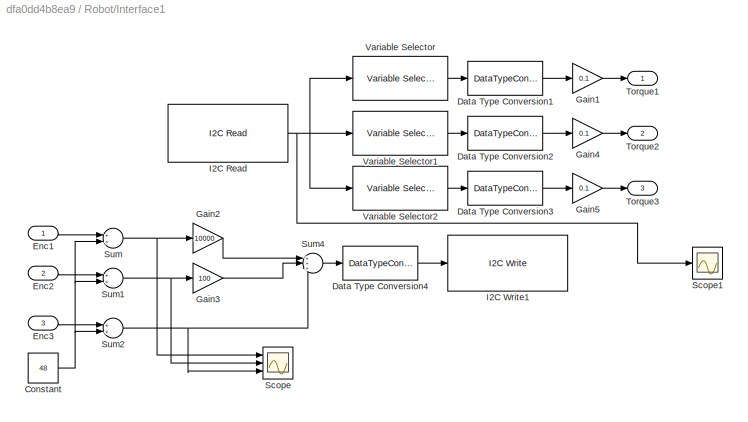
BLOCK [SubSystem] Robot/Interface1
  Ports = [3, 3]
  RequestExecContextInheritance = off
BLOCK [Constant] Robot/Interface1/Constant
  Value = 48
BLOCK [DataTypeConversion] Robot/Interface1/Data Type Conversion1
  OutDataTypeStr = double
  RndMeth = Floor
  SaturateOnIntegerOverflow = off
BLOCK [DataTypeConversion] Robot/Interface1/Data Type Conversion2
  OutDataTypeStr = double
  RndMeth = Floor
  SaturateOnIntegerOverflow = off
BLOCK [DataTypeConversion] Robot/Interface1/Data Type Conversion3
  OutDataTypeStr = double
  RndMeth = Floor
  SaturateOnIntegerOverflow = off
BLOCK [DataTypeConversion] Robot/Interface1/Data Type Conversion4
  OutDataTypeStr = int32
  RndMeth = Floor
  SaturateOnIntegerOverflow = off
BLOCK [Inport] Robot/Interface1/Enc1
  IconDisplay = Port number
BLOCK [Inport] Robot/Interface1/Enc2
  IconDisplay = Port number
  Port = 2
BLOCK [Inport] Robot/Interface1/Enc3
  IconDisplay = Port number
  Port = 3
BLOCK [Gain] Robot/Interface1/Gain1
  Gain = 0.1
  OutDataTypeStr = Inherit: Inherit via internal rule
  ParamDataTypeStr = Inherit: Inherit via internal rule
  SaturateOnIntegerOverflow = off
BLOCK [Gain] Robot/Interface1/Gain2
  Gain = 10000
  OutDataTypeStr = Inherit: Inherit via internal rule
  ParamDataTypeStr = Inherit: Inherit via internal rule
  SaturateOnIntegerOverflow = off
BLOCK [Gain] Robot/Interface1/Gain3
  Gain = 100
  OutDataTypeStr = Inherit: Inherit via internal rule
  ParamDataTypeStr = Inherit: Inherit via internal rule
  SaturateOnIntegerOverflow = off
BLOCK [Gain] Robot/Interface1/Gain4
  Gain = 0.1
  OutDataTypeStr = Inherit: Inherit via internal rule
  ParamDataTypeStr = Inherit: Inherit via internal rule
  SaturateOnIntegerOverflow = off
BLOCK [Gain] Robot/Interface1/Gain5
  Gain = 0.1
  OutDataTypeStr = Inherit: Inherit via internal rule
  ParamDataTypeStr = Inherit: Inherit via internal rule
  SaturateOnIntegerOverflow = off
BLOCK [Reference] Robot/Interface1/I2C Read  REF=arduinolib/I2C Read
  Ports = [0, 1]
  SourceBlock = arduinolib/I2C Read
  SourceProductBaseCode = ARDUINO
  SourceProductName = Simulink Support Package for Arduino Hardware
  SourceType = I2C Read
BLOCK [Reference] Robot/Interface1/I2C Write1  REF=arduinolib/I2C Write
  Ports = [1]
  SourceBlock = arduinolib/I2C Write
  SourceProductBaseCode = ARDUINO
  SourceProductName = Simulink Support Package for Arduino Hardware
  SourceType = I2C Write
BLOCK [Scope] Robot/Interface1/Scope
  Floating = off
  NumInputPorts = 3
  Ports = [3]
  ScopeSpecificationString = Simulink.scopes.TimeScopeBlockCfg('CurrentConfiguration', extmgr.ConfigurationSet(extmgr.Configuration('Core','General UI',true,'FigureColor',[1 1 1]),extmgr.Configuration('Core','Source UI',true),extmgr.Configuration('Sources','WiredSimulink',true,'DataLoggingVariableName','ScopeData2'),extmgr.Configuration('Visuals','Time Domain',true,'SerializedDisplays',{struct('MinYLimReal','-12.00000','MaxYL...<+3105ch>
BLOCK [Scope] Robot/Interface1/Scope1
  Floating = off
  NumInputPorts = 1
  Ports = [1]
  ScopeSpecificationString = Simulink.scopes.TimeScopeBlockCfg('CurrentConfiguration', extmgr.ConfigurationSet(extmgr.Configuration('Core','General UI',true,'FigureColor',[1 1 1]),extmgr.Configuration('Core','Source UI',true),extmgr.Configuration('Sources','WiredSimulink',true,'DataLoggingVariableName','ScopeData3'),extmgr.Configuration('Visuals','Time Domain',true,'SerializedDisplays',{struct('MinYLimReal','-123.375','MaxYLi...<+1761ch>
BLOCK [Sum] Robot/Interface1/Sum
  InputSameDT = off
  OutDataTypeStr = Inherit: Inherit via internal rule
  Ports = [2, 1]
  SaturateOnIntegerOverflow = off
BLOCK [Sum] Robot/Interface1/Sum1
  InputSameDT = off
  OutDataTypeStr = Inherit: Inherit via internal rule
  Ports = [2, 1]
  SaturateOnIntegerOverflow = off
BLOCK [Sum] Robot/Interface1/Sum2
  InputSameDT = off
  OutDataTypeStr = Inherit: Inherit via internal rule
  Ports = [2, 1]
  SaturateOnIntegerOverflow = off
BLOCK [Sum] Robot/Interface1/Sum4
  IconShape = round
  InputSameDT = off
  Inputs = +++
  OutDataTypeStr = Inherit: Inherit via internal rule
  Ports = [3, 1]
  SaturateOnIntegerOverflow = off
BLOCK [Outport] Robot/Interface1/Torque1
  IconDisplay = Port number
BLOCK [Outport] Robot/Interface1/Torque2
  IconDisplay = Port number
  Port = 2
BLOCK [Outport] Robot/Interface1/Torque3
  IconDisplay = Port number
  Port = 3
BLOCK [Reference] Robot/Interface1/Variable Selector  REF=dspindex/Variable
Selector
  Ports = [1, 1]
  SourceBlock = dspindex/Variable\nSelector
  SourceProductBaseCode = DS
  SourceProductName = DSP System Toolbox
  SourceType = Variable Selector
BLOCK [Reference] Robot/Interface1/Variable Selector1  REF=dspindex/Variable
Selector
  Ports = [1, 1]
  SourceBlock = dspindex/Variable\nSelector
  SourceProductBaseCode = DS
  SourceProductName = DSP System Toolbox
  SourceType = Variable Selector
BLOCK [Reference] Robot/Interface1/Variable Selector2  REF=dspindex/Variable
Selector
  Ports = [1, 1]
  SourceBlock = dspindex/Variable\nSelector
  SourceProductBaseCode = DS
  SourceProductName = DSP System Toolbox
  SourceType = Variable Selector
BLOCK [Reference] Robot/PS-Simulink Converter2  REF=nesl_utility/PS-Simulink
Converter
  Commented = on
  Ports = [0, 1, 0, 0, 0, 1]
  SourceBlock = nesl_utility/PS-Simulink\nConverter
  SourceProductBaseCode = SS
  SourceProductName = Simscape
  SourceType = PS-Simulink\nConverter
BLOCK [Reference] Robot/Simulink-PS Converter1  REF=nesl_utility/Simulink-PS
Converter
  Ports = [1, 0, 0, 0, 0, 0, 1]
  SourceBlock = nesl_utility/Simulink-PS\nConverter
  SourceProductBaseCode = SS
  SourceProductName = Simscape
  SourceType = Simulink-PS\nConverter
BLOCK [Reference] Robot/Simulink-PS Converter3  REF=nesl_utility/Simulink-PS
Converter
  Ports = [1, 0, 0, 0, 0, 0, 1]
  SourceBlock = nesl_utility/Simulink-PS\nConverter
  SourceProductBaseCode = SS
  SourceProductName = Simscape
  SourceType = Simulink-PS\nConverter
BLOCK [Reference] Robot/Simulink-PS Converter4  REF=nesl_utility/Simulink-PS
Converter
  Ports = [1, 0, 0, 0, 0, 0, 1]
  SourceBlock = nesl_utility/Simulink-PS\nConverter
  SourceProductBaseCode = SS
  SourceProductName = Simscape
  SourceType = Simulink-PS\nConverter
BLOCK [Switch] Robot/Switch
  Commented = on
  InputSameDT = off
  SaturateOnIntegerOverflow = off
  Threshold = pi
BLOCK [Reference] Robot/Transform Sensor  REF=sm_lib/Frames and
Transforms/Transform
Sensor
  Commented = on
  Ports = [0, 0, 0, 0, 0, 1, 2]
  SourceBlock = sm_lib/Frames and\nTransforms/Transform\nSensor
  SourceProductBaseCode = MS
  SourceProductName = Simscape Multibody
  SourceType = Transform\nSensor
BLOCK [SubSystem] Robot/Upper Arm
  Ports = [0, 0, 0, 0, 0, 1, 1]
  RequestExecContextInheritance = off
BLOCK [PMIOPort] Robot/Upper Arm/B
  Side = Left
BLOCK [Reference] Robot/Upper Arm/Base Transform  REF=sm_lib/Frames and
Transforms/Rigid
Transform
  Ports = [0, 0, 0, 0, 0, 1, 1]
  SourceBlock = sm_lib/Frames and\nTransforms/Rigid\nTransform
  SourceProductBaseCode = MS
  SourceProductName = Simscape Multibody
  SourceType = Rigid\nTransform
BLOCK [PMIOPort] Robot/Upper Arm/F
  Port = 2
  Side = Right
BLOCK [Reference] Robot/Upper Arm/Follower Transform  REF=sm_lib/Frames and
Transforms/Rigid
Transform
  Ports = [0, 0, 0, 0, 0, 1, 1]
  SourceBlock = sm_lib/Frames and\nTransforms/Rigid\nTransform
  SourceProductBaseCode = MS
  SourceProductName = Simscape Multibody
  SourceType = Rigid\nTransform
BLOCK [Reference] Robot/Upper Arm/Solid  REF=sm_lib/Body Elements/Solid
  Ports = [0, 0, 0, 0, 0, 0, 1]
  SourceBlock = sm_lib/Body Elements/Solid
  SourceProductBaseCode = MS
  SourceProductName = Simscape Multibody
  SourceType = Solid
BLOCK [SubSystem] Robot/Wrist
  Ports = [0, 0, 0, 0, 0, 1, 1]
  RequestExecContextInheritance = off
BLOCK [Reference] Robot/Wrist Revolute  REF=sm_lib/Joints/Revolute Joint
  Ports = [0, 0, 0, 0, 0, 1, 1]
  SourceBlock = sm_lib/Joints/Revolute Joint
  SourceProductBaseCode = MS
  SourceProductName = Simscape Multibody
  SourceType = Revolute Joint
BLOCK [PMIOPort] Robot/Wrist/B
  Side = Left
BLOCK [Reference] Robot/Wrist/Base Transform  REF=sm_lib/Frames and
Transforms/Rigid
Transform
  Ports = [0, 0, 0, 0, 0, 1, 1]
  SourceBlock = sm_lib/Frames and\nTransforms/Rigid\nTransform
  SourceProductBaseCode = MS
  SourceProductName = Simscape Multibody
  SourceType = Rigid\nTransform
BLOCK [PMIOPort] Robot/Wrist/F
  Port = 2
  Side = Right
BLOCK [Reference] Robot/Wrist/Follower Transform  REF=sm_lib/Frames and
Transforms/Rigid
Transform
  Ports = [0, 0, 0, 0, 0, 1, 1]
  SourceBlock = sm_lib/Frames and\nTransforms/Rigid\nTransform
  SourceProductBaseCode = MS
  SourceProductName = Simscape Multibody
  SourceType = Rigid\nTransform
BLOCK [Reference] Robot/Wrist/Solid  REF=sm_lib/Body Elements/Solid
  Ports = [0, 0, 0, 0, 0, 0, 1]
  SourceBlock = sm_lib/Body Elements/Solid
  SourceProductBaseCode = MS
  SourceProductName = Simscape Multibody
  SourceType = Solid
BLOCK [Reference] Solver Configuration  REF=nesl_utility/Solver
Configuration
  Ports = [0, 0, 0, 0, 0, 0, 1]
  SourceBlock = nesl_utility/Solver\nConfiguration
  SourceProductBaseCode = SS
  SourceProductName = Simscape
  SourceType = Solver\nConfiguration
BLOCK [Reference] World  REF=sm_lib/Frames and
Transforms/World Frame
  Ports = [0, 0, 0, 0, 0, 0, 1]
  SourceBlock = sm_lib/Frames and\nTransforms/World Frame
  SourceProductBaseCode = MS
  SourceProductName = Simscape Multibody
  SourceType = World Frame
ANNOTATION (root): Modeling A Robot Using STEP Files
ANNOTATION (root): This example shows how to import geometry and inertia data using STEP files. The STEP file is a standard format used commonly for data exchange between CAD applications. The format can capture a parts complete geometry information. Given the mass of the part and the volume distribution Simscape Multibody can automatically compute the inertia properties of the part. Open the Solid block dialogs in ...<+347ch>
LINE Robot/Add:1 -> Robot/Switch:1
LINE Robot/Constant4:1 -> Robot/Add:1
LINE Robot/DC Motor1:1 -> Robot/Interface1:2
LINE Robot/DC Motor2:1 -> Robot/Interface1:1
LINE Robot/DC Motor3:1 -> Robot/Interface1:3
LINE Robot/Gripper Actuation/Constant:1 -> Robot/Gripper Actuation/Simulink-PS Converter:1
NET Robot/Gripper/Finger Act/Finger Motion:1 -> Robot/Gripper/Finger Act/Gain1:1, Robot/Gripper/Finger Act/Simulink-PS Converter1:1
LINE Robot/Gripper/Finger Act/Gain1:1 -> Robot/Gripper/Finger Act/Simulink-PS Converter:1
NET Robot/Interface1/Constant:1 -> Robot/Interface1/Sum1:2, Robot/Interface1/Sum2:2, Robot/Interface1/Sum:2
LINE Robot/Interface1/Data Type Conversion1:1 -> Robot/Interface1/Gain1:1
LINE Robot/Interface1/Data Type Conversion2:1 -> Robot/Interface1/Gain4:1
LINE Robot/Interface1/Data Type Conversion3:1 -> Robot/Interface1/Gain5:1
LINE Robot/Interface1/Data Type Conversion4:1 -> Robot/Interface1/I2C Write1:1
LINE Robot/Interface1/Enc1:1 -> Robot/Interface1/Sum:1
LINE Robot/Interface1/Enc2:1 -> Robot/Interface1/Sum1:1
LINE Robot/Interface1/Enc3:1 -> Robot/Interface1/Sum2:1
LINE Robot/Interface1/Gain1:1 -> Robot/Interface1/Torque1:1
LINE Robot/Interface1/Gain2:1 -> Robot/Interface1/Sum4:1
LINE Robot/Interface1/Gain3:1 -> Robot/Interface1/Sum4:2
LINE Robot/Interface1/Gain4:1 -> Robot/Interface1/Torque2:1
LINE Robot/Interface1/Gain5:1 -> Robot/Interface1/Torque3:1
NET Robot/Interface1/I2C Read:1 -> Robot/Interface1/Scope1:1, Robot/Interface1/Variable Selector1:1, Robot/Interface1/Variable Selector2:1, Robot/Interface1/Variable Selector:1
NET Robot/Interface1/Sum1:1 -> Robot/Interface1/Gain3:1, Robot/Interface1/Scope:2
NET Robot/Interface1/Sum2:1 -> Robot/Interface1/Scope:3, Robot/Interface1/Sum4:3
LINE Robot/Interface1/Sum4:1 -> Robot/Interface1/Data Type Conversion4:1
NET Robot/Interface1/Sum:1 -> Robot/Interface1/Gain2:1, Robot/Interface1/Scope:1
LINE Robot/Interface1/Variable Selector1:1 -> Robot/Interface1/Data Type Conversion2:1
LINE Robot/Interface1/Variable Selector2:1 -> Robot/Interface1/Data Type Conversion3:1
LINE Robot/Interface1/Variable Selector:1 -> Robot/Interface1/Data Type Conversion1:1
LINE Robot/Interface1:1 -> Robot/Simulink-PS Converter1:1
LINE Robot/Interface1:2 -> Robot/Simulink-PS Converter4:1
LINE Robot/Interface1:3 -> Robot/Simulink-PS Converter3:1
NET Robot/PS-Simulink Converter2:1 -> Robot/Add:2, Robot/Switch:2, Robot/Switch:3
PNET net1: MechanismConfiguration:RConn1 -- Robot:LConn1 -- Solver Configuration:RConn1 -- World:RConn1
PLINE Robot/B:RConn1 -- Robot/Base:LConn1
PNET net2: Robot/Base/B:RConn1 -- Robot/Base/Follower Transform:LConn1 -- Robot/Base/Solid:RConn1
PLINE Robot/Base/F:RConn1 -- Robot/Base/Follower Transform:RConn1
PNET net3: Robot/Base:RConn1 -- Robot/DC Motor2:LConn1 -- Robot/Forearm Revolute1:LConn1 -- Robot/Transform Sensor:LConn1
PLINE Robot/Controlled Voltage Source1:LConn1 -- Robot/DC Motor1:LConn2
PLINE Robot/Controlled Voltage Source1:RConn1 -- Robot/Simulink-PS Converter4:RConn1
PNET net4: Robot/Controlled Voltage Source1:RConn2 -- Robot/DC Motor1:RConn2 -- Robot/Electrical Reference2:LConn1
PLINE Robot/Controlled Voltage Source2:LConn1 -- Robot/DC Motor2:LConn2
PLINE Robot/Controlled Voltage Source2:RConn1 -- Robot/Simulink-PS Converter1:RConn1
PNET net5: Robot/Controlled Voltage Source2:RConn2 -- Robot/DC Motor2:RConn2 -- Robot/Electrical Reference1:LConn1
PLINE Robot/Controlled Voltage Source3:LConn1 -- Robot/DC Motor3:LConn2
PLINE Robot/Controlled Voltage Source3:RConn1 -- Robot/Simulink-PS Converter3:RConn1
PNET net6: Robot/Controlled Voltage Source3:RConn2 -- Robot/DC Motor3:RConn2 -- Robot/Electrical Reference3:LConn1
PNET net7: Robot/DC Motor1:LConn1 -- Robot/Forearm Revolute:LConn1 -- Robot/Upper Arm:RConn1
PNET net8: Robot/DC Motor1:RConn1 -- Robot/Fore Arm:LConn1 -- Robot/Forearm Revolute:RConn1
PNET net9: Robot/DC Motor2:RConn1 -- Robot/Forearm Revolute1:RConn1 -- Robot/Transform Sensor:RConn1 -- Robot/Upper Arm:LConn1
PNET net10: Robot/DC Motor3:LConn1 -- Robot/Fore Arm:RConn1 -- Robot/Wrist Revolute:LConn1
PNET net11: Robot/DC Motor3:RConn1 -- Robot/Wrist Revolute:RConn1 -- Robot/Wrist:LConn1
PLINE Robot/Fore Arm/B:RConn1 -- Robot/Fore Arm/Base Transform:RConn1
PNET net12: Robot/Fore Arm/Base Transform:LConn1 -- Robot/Fore Arm/Follower Transform:LConn1 -- Robot/Fore Arm/Solid:RConn1
PLINE Robot/Fore Arm/F:RConn1 -- Robot/Fore Arm/Follower Transform:RConn1
PLINE Robot/Gripper Actuation/Simulink-PS Converter:RConn1 -- Robot/Gripper Actuation/p:RConn1
PLINE Robot/Gripper Actuation:RConn1 -- Robot/Gripper Revolute:LConn2
PLINE Robot/Gripper Revolute:LConn1 -- Robot/Wrist:RConn1
PLINE Robot/Gripper Revolute:RConn1 -- Robot/Gripper:LConn1
PLINE Robot/Gripper/F:RConn1 -- Robot/Gripper/Metacarple:LConn1
PLINE Robot/Gripper/Finger Act/L:RConn1 -- Robot/Gripper/Finger Act/Simulink-PS Converter:RConn1
PLINE Robot/Gripper/Finger Act/R:RConn1 -- Robot/Gripper/Finger Act/Simulink-PS Converter1:RConn1
PLINE Robot/Gripper/Finger Act:RConn1 -- Robot/Gripper/Left Revolute B:LConn2
PLINE Robot/Gripper/Finger Act:RConn2 -- Robot/Gripper/Right Revolute B:LConn2
PLINE Robot/Gripper/Left Finger Revolute  A:LConn1 -- Robot/Gripper/Left First Finger Link:RConn1
PLINE Robot/Gripper/Left Finger Revolute  A:RConn1 -- Robot/Gripper/Left Finger Tips:LConn1
PLINE Robot/Gripper/Left Finger Revolute B:LConn1 -- Robot/Gripper/Left Second Finger Link:RConn1
PLINE Robot/Gripper/Left Finger Revolute B:RConn1 -- Robot/Gripper/Left Finger Tips:LConn2
PNET net13: Robot/Gripper/Left Finger Tips/First Transform:LConn1 -- Robot/Gripper/Left Finger Tips/Second Transform:LConn1 -- Robot/Gripper/Left Finger Tips/Solid:RConn1
PLINE Robot/Gripper/Left Finger Tips/First Transform:RConn1 -- Robot/Gripper/Left Finger Tips/First:RConn1
PLINE Robot/Gripper/Left Finger Tips/Second Transform:RConn1 -- Robot/Gripper/Left Finger Tips/Second:RConn1
PLINE Robot/Gripper/Left First Finger Link/B:RConn1 -- Robot/Gripper/Left First Finger Link/Base Transform:RConn1
PNET net14: Robot/Gripper/Left First Finger Link/Base Transform:LConn1 -- Robot/Gripper/Left First Finger Link/Follower Transform:LConn1 -- Robot/Gripper/Left First Finger Link/Solid:RConn1
PLINE Robot/Gripper/Left First Finger Link/F:RConn1 -- Robot/Gripper/Left First Finger Link/Follower Transform:RConn1
PLINE Robot/Gripper/Left First Finger Link:LConn1 -- Robot/Gripper/Left Revolute A:RConn1
PLINE Robot/Gripper/Left Revolute A:LConn1 -- Robot/Gripper/Metacarple:RConn1
PLINE Robot/Gripper/Left Revolute B:LConn1 -- Robot/Gripper/Metacarple:RConn2
PLINE Robot/Gripper/Left Revolute B:RConn1 -- Robot/Gripper/Left Second Finger Link:LConn1
PLINE Robot/Gripper/Left Second Finger Link/B:RConn1 -- Robot/Gripper/Left Second Finger Link/Base Transform:RConn1
PNET net15: Robot/Gripper/Left Second Finger Link/Base Transform:LConn1 -- Robot/Gripper/Left Second Finger Link/Follower Transform:LConn1 -- Robot/Gripper/Left Second Finger Link/Solid:RConn1
PLINE Robot/Gripper/Left Second Finger Link/F:RConn1 -- Robot/Gripper/Left Second Finger Link/Follower Transform:RConn1
PLINE Robot/Gripper/Metacarple/A:RConn1 -- Robot/Gripper/Metacarple/Transform A:RConn1
PLINE Robot/Gripper/Metacarple/B:RConn1 -- Robot/Gripper/Metacarple/Transform B:RConn1
PNET net16: Robot/Gripper/Metacarple/Base Transform:LConn1 -- Robot/Gripper/Metacarple/Solid:RConn1 -- Robot/Gripper/Metacarple/Transform A:LConn1 -- Robot/Gripper/Metacarple/Transform B:LConn1 -- Robot/Gripper/Metacarple/Transform C:LConn1 -- Robot/Gripper/Metacarple/Transform D:LConn1
PLINE Robot/Gripper/Metacarple/Base Transform:RConn1 -- Robot/Gripper/Metacarple/Base:RConn1
PLINE Robot/Gripper/Metacarple/C:RConn1 -- Robot/Gripper/Metacarple/Transform C:RConn1
PLINE Robot/Gripper/Metacarple/D:RConn1 -- Robot/Gripper/Metacarple/Transform D:RConn1
PLINE Robot/Gripper/Metacarple:RConn3 -- Robot/Gripper/Right Revolute B:LConn1
PLINE Robot/Gripper/Metacarple:RConn4 -- Robot/Gripper/Right Revolute A:LConn1
PLINE Robot/Gripper/Right Finger Revolute A:LConn1 -- Robot/Gripper/Right First Finger Link:RConn1
PLINE Robot/Gripper/Right Finger Revolute A:RConn1 -- Robot/Gripper/Right Finger Tips:LConn2
PLINE Robot/Gripper/Right Finger Revolute B:LConn1 -- Robot/Gripper/Right Second Finger Link:RConn1
PLINE Robot/Gripper/Right Finger Revolute B:RConn1 -- Robot/Gripper/Right Finger Tips:LConn1
PLINE Robot/Gripper/Right Finger Tips/First:RConn1 -- Robot/Gripper/Right Finger Tips/Transform to First:RConn1
PLINE Robot/Gripper/Right Finger Tips/Second:RConn1 -- Robot/Gripper/Right Finger Tips/Transform to Second:RConn1
PNET net17: Robot/Gripper/Right Finger Tips/Solid:RConn1 -- Robot/Gripper/Right Finger Tips/Transform to First:LConn1 -- Robot/Gripper/Right Finger Tips/Transform to Second:LConn1
PLINE Robot/Gripper/Right First Finger Link/B:RConn1 -- Robot/Gripper/Right First Finger Link/Base Transform:RConn1
PNET net18: Robot/Gripper/Right First Finger Link/Base Transform:LConn1 -- Robot/Gripper/Right First Finger Link/Follower Transform:LConn1 -- Robot/Gripper/Right First Finger Link/Solid:RConn1
PLINE Robot/Gripper/Right First Finger Link/F:RConn1 -- Robot/Gripper/Right First Finger Link/Follower Transform:RConn1
PLINE Robot/Gripper/Right First Finger Link:LConn1 -- Robot/Gripper/Right Revolute A:RConn1
PLINE Robot/Gripper/Right Revolute B:RConn1 -- Robot/Gripper/Right Second Finger Link:LConn1
PLINE Robot/Gripper/Right Second Finger Link/B:RConn1 -- Robot/Gripper/Right Second Finger Link/Base Transform:RConn1
PNET net19: Robot/Gripper/Right Second Finger Link/Base Transform:LConn1 -- Robot/Gripper/Right Second Finger Link/Follower Transform:LConn1 -- Robot/Gripper/Right Second Finger Link/Solid:RConn1
PLINE Robot/Gripper/Right Second Finger Link/F:RConn1 -- Robot/Gripper/Right Second Finger Link/Follower Transform:RConn1
PLINE Robot/PS-Simulink Converter2:LConn1 -- Robot/Transform Sensor:RConn2
PLINE Robot/Upper Arm/B:RConn1 -- Robot/Upper Arm/Base Transform:RConn1
PNET net20: Robot/Upper Arm/Base Transform:LConn1 -- Robot/Upper Arm/Follower Transform:LConn1 -- Robot/Upper Arm/Solid:RConn1
PLINE Robot/Upper Arm/F:RConn1 -- Robot/Upper Arm/Follower Transform:RConn1
PLINE Robot/Wrist/B:RConn1 -- Robot/Wrist/Base Transform:RConn1
PNET net21: Robot/Wrist/Base Transform:LConn1 -- Robot/Wrist/Follower Transform:LConn1 -- Robot/Wrist/Solid:RConn1
PLINE Robot/Wrist/F:RConn1 -- Robot/Wrist/Follower Transform:RConn1
note: NET lines group one-source signal fan-out (src -> all destinations, sorted); 1:1 wires keep LINE; PNET lines group multi-terminal physical nets as a canonical sorted terminal list (undirected conserving connections); 2-terminal nets keep the pairwise PLINE form
